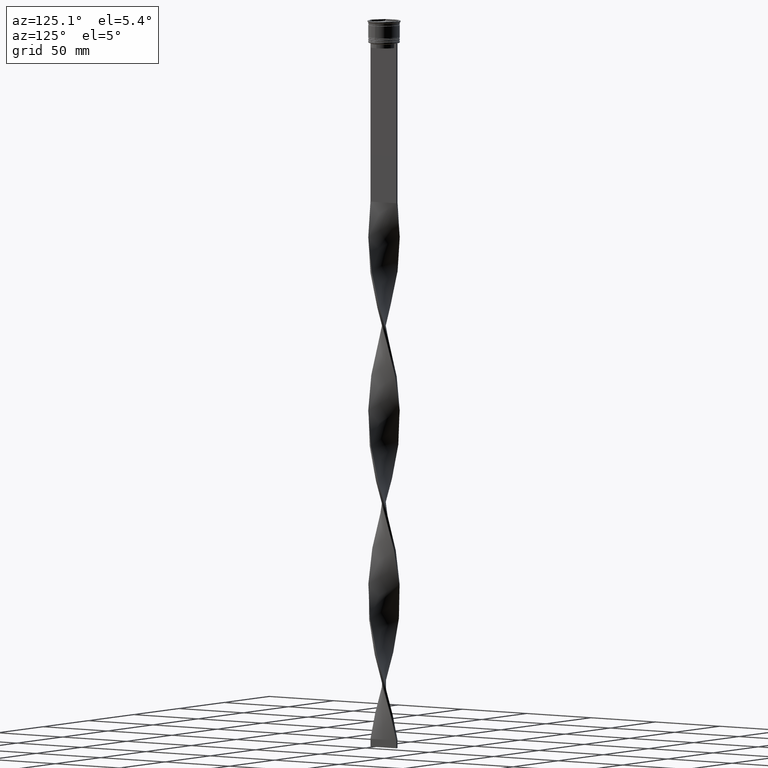
[diagram: clean part render]
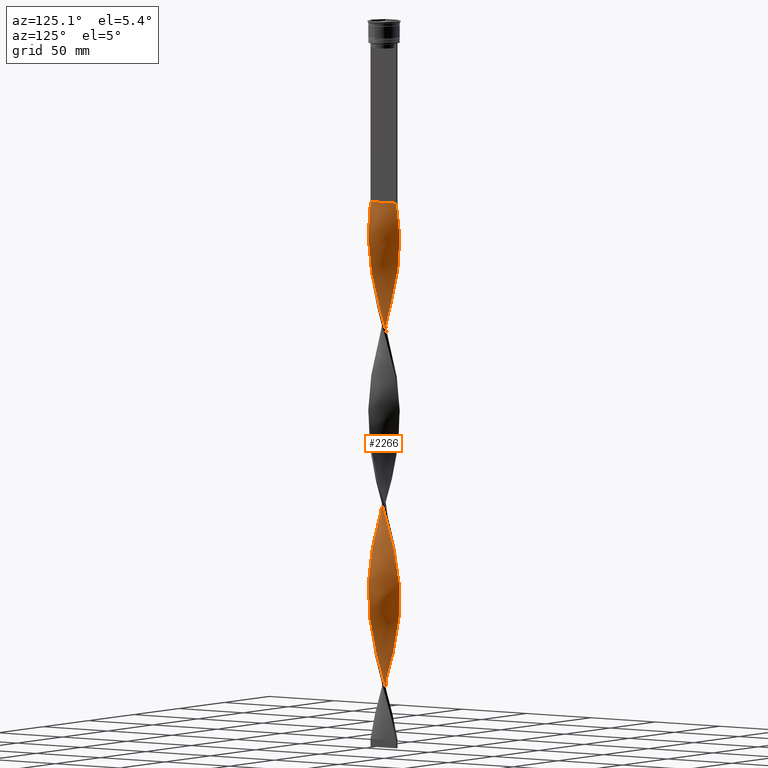
[diagram: same view with one face highlighted and labeled with its STEP entity id]
A machine part, auxiliary view. The second image highlights one B-rep face of the part: STEP entity #2266.
In plain terms, the highlighted face is a freeform B-spline surface patch.
Its self-contained STEP definition (entity closure, byte-faithful):
#6 = CARTESIAN_POINT ( 'NONE',  ( 8.476467727406429731, 5.406144972209740551, -310.8863636363635692 ) ) ;
#9 = CARTESIAN_POINT ( 'NONE',  ( 9.956260036359488197, -1.396350487056333467, -394.0378787878787534 ) ) ;
#26 = CARTESIAN_POINT ( 'NONE',  ( 6.610024179840426228, 7.575255041002662892, -321.2803030303030027 ) ) ;
#28 = CARTESIAN_POINT ( 'NONE',  ( 7.575255041002671774, 6.610024179840428893, -425.2196969696969404 ) ) ;
#44 = CARTESIAN_POINT ( 'NONE',  ( 0.03478588441202989240, 10.05364105866909341, -347.2651515151514445 ) ) ;
#46 = CARTESIAN_POINT ( 'NONE',  ( 0.7500000000000001110, -10.00000000000000533, -116.0000000000000000 ) ) ;
#47 = CARTESIAN_POINT ( 'NONE',  ( 8.048641294001550150, -5.981795158687160274, -375.8484848484848726 ) ) ;
#96 = CARTESIAN_POINT ( 'NONE',  ( 8.784758693793767392, -4.836374126534752627, -271.9090909090909349 ) ) ;
#98 = CARTESIAN_POINT ( 'NONE',  ( -7.066350193083621889, -7.115419520218549287, -313.4848484848484986 ) ) ;
#103 = CARTESIAN_POINT ( 'NONE',  ( -0.7500000000000014433, -9.999999999999998224, -459.0000000000000000 ) ) ;
#113 = CARTESIAN_POINT ( 'NONE',  ( 3.536945298625171041, -9.383630318513906943, -126.3939393939393909 ) ) ;
#117 = CARTESIAN_POINT ( 'NONE',  ( -4.208075784551208010, -9.130662998149977838, -217.3409090909090651 ) ) ;
#119 = CARTESIAN_POINT ( 'NONE',  ( -8.438854389437562276, -5.464672468518299020, -305.6893939393939945 ) ) ;
#129 = CARTESIAN_POINT ( 'NONE',  ( -1.396350487056332579, 9.956260036359481091, -352.4621212121211897 ) ) ;
#145 = CARTESIAN_POINT ( 'NONE',  ( 0.6807823013221493413, -10.00495054751428903, -235.5303030303030312 ) ) ;
#149 = CARTESIAN_POINT ( 'NONE',  ( -9.159564155400591545, 4.144791077655442635, -269.3106060606060623 ) ) ;
#155 = CARTESIAN_POINT ( 'NONE',  ( -3.471926133502974299, 9.407881213296597878, -360.2575757575757507 ) ) ;
#165 = CARTESIAN_POINT ( 'NONE',  ( 7.066350193083616560, -7.115419520218544847, -261.5151515151515582 ) ) ;
#167 = CARTESIAN_POINT ( 'NONE',  ( -5.464672468518299908, 8.438854389437562276, -248.5227272727272521 ) ) ;
#186 = CARTESIAN_POINT ( 'NONE',  ( 7.575255041002665557, -6.610024179840427117, -264.1136363636363171 ) ) ;
#188 = CARTESIAN_POINT ( 'NONE',  ( -6.037348324179364845, 8.007054715220117913, -251.1212121212121247 ) ) ;
#208 = CARTESIAN_POINT ( 'NONE',  ( -9.407881213296604983, 3.471926133502976963, -271.9090909090909349 ) ) ;
#212 = CARTESIAN_POINT ( 'NONE',  ( -4.775468024932588484, 8.818015941403508862, -365.4545454545454959 ) ) ;
#237 = CARTESIAN_POINT ( 'NONE',  ( 4.144791077655440859, 9.159564155400591545, -212.1439393939393767 ) ) ;
#240 = CARTESIAN_POINT ( 'NONE',  ( 5.464672468518299020, -8.438854389437562276, -134.1893939393939661 ) ) ;
#255 = CARTESIAN_POINT ( 'NONE',  ( 0.03478588441202989240, 10.05364105866909341, -118.5984848484848442 ) ) ;
#259 = CARTESIAN_POINT ( 'NONE',  ( -9.383630318513908719, -3.536945298625168377, -297.8939393939394336 ) ) ;
#261 = CARTESIAN_POINT ( 'NONE',  ( 8.818015941403514191, -4.775468024932593814, -152.3787878787879038 ) ) ;
#278 = CARTESIAN_POINT ( 'NONE',  ( -4.775468024932588484, 8.818015941403508862, -136.7878787878787818 ) ) ;
#282 = CARTESIAN_POINT ( 'NONE',  ( -4.208075784551211562, 9.130662998149981391, -243.3257575757575637 ) ) ;
#284 = CARTESIAN_POINT ( 'NONE',  ( -2.865814812699130520, -9.636597638877821836, -451.2045454545454959 ) ) ;
#301 = CARTESIAN_POINT ( 'NONE',  ( -9.407881213296597878, -3.471926133502973411, -188.7575757575757507 ) ) ;
#304 = CARTESIAN_POINT ( 'NONE',  ( 8.818015941403514191, -4.775468024932593814, -381.0454545454545610 ) ) ;
#305 = CARTESIAN_POINT ( 'NONE',  ( 8.438854389437562276, 5.464672468518299908, -191.3560606060605949 ) ) ;
#307 = CARTESIAN_POINT ( 'NONE',  ( -7.575255041002665557, 6.610024179840426228, -378.4469696969697452 ) ) ;
#323 = CARTESIAN_POINT ( 'NONE',  ( 7.115419520218541294, 7.066350193083618336, -318.6818181818181870 ) ) ;
#326 = CARTESIAN_POINT ( 'NONE',  ( 5.464672468518299020, -8.438854389437562276, -362.8560606060606233 ) ) ;
#328 = CARTESIAN_POINT ( 'NONE',  ( 9.383630318513906943, 3.536945298625171041, -183.5606060606060908 ) ) ;
#343 = CARTESIAN_POINT ( 'NONE',  ( -9.159564155400586216, -4.144791077655436418, -191.3560606060605949 ) ) ;
#346 = CARTESIAN_POINT ( 'NONE',  ( 8.476467727406435060, -5.406144972209745880, -378.4469696969697452 ) ) ;
#347 = CARTESIAN_POINT ( 'NONE',  ( 8.438854389437562276, 5.464672468518299908, -420.0227272727271952 ) ) ;
#366 = CARTESIAN_POINT ( 'NONE',  ( 7.575255041002664669, -6.610024179840426228, -264.1136363636363171 ) ) ;
#367 = CARTESIAN_POINT ( 'NONE',  ( 9.383630318513906943, 3.536945298625171041, -412.2272727272727479 ) ) ;
#368 = CARTESIAN_POINT ( 'NONE',  ( -6.557445345164575556, -7.620814860596665241, -316.0833333333332575 ) ) ;
#374 = CARTESIAN_POINT ( 'NONE',  ( -4.775468024932588484, 8.818015941403508862, -136.7878787878787818 ) ) ;
#381 = CARTESIAN_POINT ( 'NONE',  ( -2.865814812699130520, -9.636597638877821836, -222.5378787878787534 ) ) ;
#383 = CARTESIAN_POINT ( 'NONE',  ( 1.396350487056334355, 9.956260036359488197, -451.2045454545454959 ) ) ;
#384 = CARTESIAN_POINT ( 'NONE',  ( 8.476467727406435060, -5.406144972209745880, -378.4469696969697452 ) ) ;
#391 = CARTESIAN_POINT ( 'NONE',  ( 0.7500000000000001110, 9.999999999999998224, -116.0000000000000000 ) ) ;
#421 = CARTESIAN_POINT ( 'NONE',  ( -8.007054715220110808, 6.037348324179362180, -381.0454545454545610 ) ) ;
#432 = CARTESIAN_POINT ( 'NONE',  ( -9.383630318513899837, 3.536945298625170153, -162.7727272727272805 ) ) ;
#434 = ORIENTED_EDGE ( 'NONE', *, *, #994, .T. ) ;
#435 = CARTESIAN_POINT ( 'NONE',  ( -9.636597638877828942, -2.865814812699133629, -295.2954545454545041 ) ) ;
#442 = CARTESIAN_POINT ( 'NONE',  ( -10.05364105866909341, 0.03478588441203087078, -404.4318181818181301 ) ) ;
#452 = CARTESIAN_POINT ( 'NONE',  ( -4.836374126534751738, -8.784758693793767392, -214.7424242424242209 ) ) ;
#454 = CARTESIAN_POINT ( 'NONE',  ( -7.620814860596667906, 6.557445345164575556, -258.9166666666666288 ) ) ;
#467 = CARTESIAN_POINT ( 'NONE',  ( 7.620814860596667906, -6.557445345164574668, -144.5833333333333428 ) ) ;
#470 = CARTESIAN_POINT ( 'NONE',  ( 4.836374126534752627, 8.784758693793767392, -329.0757575757575637 ) ) ;
#472 = CARTESIAN_POINT ( 'NONE',  ( -2.865814812699129632, 9.636597638877828942, -238.1287878787878469 ) ) ;
#480 = CARTESIAN_POINT ( 'NONE',  ( -7.115419520218544847, -7.066350193083616560, -433.0151515151515014 ) ) ;
#495 = CARTESIAN_POINT ( 'NONE',  ( -8.048641294001546598, -5.981795158687154945, -199.1515151515151558 ) ) ;
#498 = CARTESIAN_POINT ( 'NONE',  ( -9.791478290104370430, -2.165514464143549311, -292.6969696969697452 ) ) ;
#513 = CARTESIAN_POINT ( 'NONE',  ( 9.791478290104359772, -2.165514464143551532, -282.3030303030303116 ) ) ;
#517 = CARTESIAN_POINT ( 'NONE',  ( -3.471926133502977851, -9.407881213296603207, -329.0757575757575637 ) ) ;
#534 = CARTESIAN_POINT ( 'NONE',  ( 2.097705838203425266, 9.806229153776049756, -219.9393939393939377 ) ) ;
#538 = CARTESIAN_POINT ( 'NONE',  ( 3.536945298625171041, -9.383630318513906943, -126.3939393939393909 ) ) ;
#552 = CARTESIAN_POINT ( 'NONE',  ( -0.7500000000000014433, -9.999999999999998224, -459.0000000000000000 ) ) ;
#558 = CARTESIAN_POINT ( 'NONE',  ( 9.383630318513906943, 3.536945298625171041, -183.5606060606060908 ) ) ;
#560 = CARTESIAN_POINT ( 'NONE',  ( -3.536945298625169265, -9.383630318513899837, -448.6060606060606233 ) ) ;
#579 = CARTESIAN_POINT ( 'NONE',  ( -5.406144972209740551, 8.476467727406427954, -139.3863636363636260 ) ) ;
#585 = CARTESIAN_POINT ( 'NONE',  ( -2.165514464143549311, 9.791478290104370430, -235.5303030303030312 ) ) ;
#588 = CARTESIAN_POINT ( 'NONE',  ( -8.784758693793767392, 4.836374126534752627, -386.2424242424242493 ) ) ;
#605 = CARTESIAN_POINT ( 'NONE',  ( -9.656198271192609539, 2.799061189350520618, -274.5075757575757507 ) ) ;
#609 = CARTESIAN_POINT ( 'NONE',  ( -5.464672468518298132, -8.438854389437555170, -440.8106060606060055 ) ) ;
#624 = CARTESIAN_POINT ( 'NONE',  ( -9.383630318513899837, 3.536945298625170153, -162.7727272727272805 ) ) ;
#629 = CARTESIAN_POINT ( 'NONE',  ( 9.159564155400593322, -4.144791077655439082, -154.9772727272727195 ) ) ;
#631 = CARTESIAN_POINT ( 'NONE',  ( -2.799061189350513956, 9.656198271192604210, -357.6590909090909918 ) ) ;
#651 = CARTESIAN_POINT ( 'NONE',  ( 9.130662998149976062, -4.208075784551211562, -274.5075757575757507 ) ) ;
#655 = CARTESIAN_POINT ( 'NONE',  ( -0.6807823013221542263, -10.00495054751429613, -339.4696969696969973 ) ) ;
#657 = CARTESIAN_POINT ( 'NONE',  ( 10.05364105866910052, 0.03478588441202912912, -170.5681818181818414 ) ) ;
#673 = CARTESIAN_POINT ( 'NONE',  ( -0.03478588441203151610, -10.05364105866909341, -232.9318181818181870 ) ) ;
#676 = CARTESIAN_POINT ( 'NONE',  ( 9.791478290104370430, 2.165514464143550200, -407.0303030303030027 ) ) ;
#689 = CARTESIAN_POINT ( 'NONE',  ( 9.999999999999998224, -0.7500000000000021094, -287.5000000000000568 ) ) ;
#690 = CARTESIAN_POINT ( 'NONE',  ( 9.946358941330910142, 1.465214115587969879, -404.4318181818180733 ) ) ;
#691 = CARTESIAN_POINT ( 'NONE',  ( 6.610024179840428005, -7.575255041002671774, -368.0530303030302548 ) ) ;
#712 = CARTESIAN_POINT ( 'NONE',  ( -1.465214115587971211, -9.946358941330901260, -227.7348484848484702 ) ) ;
#714 = CARTESIAN_POINT ( 'NONE',  ( 9.407881213296603207, -3.471926133502977851, -386.2424242424242493 ) ) ;
#715 = CARTESIAN_POINT ( 'NONE',  ( -4.775468024932591149, -8.818015941403515967, -323.8787878787878753 ) ) ;
#717 = CARTESIAN_POINT ( 'NONE',  ( 0.7500000000000001110, -10.00000000000000533, -116.0000000000000000 ) ) ;
#729 = CARTESIAN_POINT ( 'NONE',  ( -8.048641294001546598, -5.981795158687154945, -199.1515151515151558 ) ) ;
#733 = CARTESIAN_POINT ( 'NONE',  ( -3.471926133502977851, -9.407881213296603207, -329.0757575757575637 ) ) ;
#747 = CARTESIAN_POINT ( 'NONE',  ( -8.438854389437556947, 5.464672468518296355, -383.6439393939393767 ) ) ;
#754 = CARTESIAN_POINT ( 'NONE',  ( 0.7500000000000001110, -10.00000000000000533, -116.0000000000000000 ) ) ;
#766 = CARTESIAN_POINT ( 'NONE',  ( -0.6807823013221514508, 10.00495054751428903, -349.8636363636363740 ) ) ;
#776 = CARTESIAN_POINT ( 'NONE',  ( -9.956260036359481091, -1.396350487056332801, -180.9621212121212182 ) ) ;
#778 = CARTESIAN_POINT ( 'NONE',  ( 7.575255041002672662, 6.610024179840429781, -196.5530303030303116 ) ) ;
#788 = CARTESIAN_POINT ( 'NONE',  ( -8.818015941403507085, -4.775468024932588484, -422.6212121212121247 ) ) ;
#794 = CARTESIAN_POINT ( 'NONE',  ( 6.610024179840428005, -7.575255041002671774, -139.3863636363636260 ) ) ;
#798 = CARTESIAN_POINT ( 'NONE',  ( -8.818015941403507085, -4.775468024932588484, -193.9545454545454675 ) ) ;
#800 = CARTESIAN_POINT ( 'NONE',  ( 2.799061189350515289, 9.656198271192613092, -217.3409090909090651 ) ) ;
#806 = CARTESIAN_POINT ( 'NONE',  ( -2.097705838203423490, 9.806229153776044427, -355.0606060606060623 ) ) ;
#811 = CARTESIAN_POINT ( 'NONE',  ( -0.7500000000000014433, -9.999999999999998224, -459.0000000000000000 ) ) ;
#817 = CARTESIAN_POINT ( 'NONE',  ( 1.396350487056330358, -9.956260036359481091, -238.1287878787878469 ) ) ;
#819 = CARTESIAN_POINT ( 'NONE',  ( 0.7500000000000001110, -10.00000000000000533, -344.6666666666666856 ) ) ;
#828 = CARTESIAN_POINT ( 'NONE',  ( -3.536945298625169265, -9.383630318513899837, -448.6060606060606233 ) ) ;
#845 = CARTESIAN_POINT ( 'NONE',  ( 9.636597638877821836, -2.865814812699135850, -279.7045454545453822 ) ) ;
#850 = CARTESIAN_POINT ( 'NONE',  ( 4.836374126534755291, -8.784758693793774498, -360.2575757575757507 ) ) ;
#867 = CARTESIAN_POINT ( 'NONE',  ( -4.836374126534756179, 8.784758693793772721, -245.9242424242424363 ) ) ;
#870 = CARTESIAN_POINT ( 'NONE',  ( 9.999999999999998224, -0.7500000000000019984, -287.5000000000000568 ) ) ;
#873 = CARTESIAN_POINT ( 'NONE',  ( -9.956260036359488197, 1.396350487056339240, -279.7045454545453822 ) ) ;
#886 = CARTESIAN_POINT ( 'NONE',  ( 2.799061189350515289, 9.656198271192613092, -217.3409090909090651 ) ) ;
#891 = CARTESIAN_POINT ( 'NONE',  ( -9.656198271192604210, -2.799061189350513512, -414.8257575757575637 ) ) ;
#916 = CARTESIAN_POINT ( 'NONE',  ( -9.636597638877828942, -2.865814812699133629, -295.2954545454545041 ) ) ;
#918 = CARTESIAN_POINT ( 'NONE',  ( -4.836374126534751738, -8.784758693793767392, -443.4090909090909349 ) ) ;
#938 = CARTESIAN_POINT ( 'NONE',  ( -8.784758693793767392, 4.836374126534752627, -157.5757575757575921 ) ) ;
#941 = CARTESIAN_POINT ( 'NONE',  ( -8.438854389437562276, -5.464672468518299020, -305.6893939393939945 ) ) ;
#944 = CARTESIAN_POINT ( 'NONE',  ( 0.03478588441202978832, 10.05364105866909341, -347.2651515151514445 ) ) ;
#960 = CARTESIAN_POINT ( 'NONE',  ( -10.05364105866909341, 0.03478588441203087078, -175.7651515151515014 ) ) ;
#963 = CARTESIAN_POINT ( 'NONE',  ( 7.575255041002671774, 6.610024179840428893, -196.5530303030303116 ) ) ;
#965 = CARTESIAN_POINT ( 'NONE',  ( 0.7500000000000001110, -10.00000000000000533, -116.0000000000000000 ) ) ;
#981 = CARTESIAN_POINT ( 'NONE',  ( -7.620814860596662577, -6.557445345164568451, -201.7499999999999716 ) ) ;
#989 = CARTESIAN_POINT ( 'NONE',  ( -0.03478588441202849074, 10.05364105866910052, -456.4015151515151274 ) ) ;
#991 = CARTESIAN_POINT ( 'NONE',  ( -0.7500000000000013323, -9.999999999999998224, -459.0000000000000000 ) ) ;
#994 = EDGE_CURVE ( 'NONE', #4324, #1005, #3425, .T. ) ;
#1005 = VERTEX_POINT ( 'NONE', #2415 ) ;
#1010 = CARTESIAN_POINT ( 'NONE',  ( 8.048641294001544821, 5.981795158687156722, -313.4848484848484986 ) ) ;
#1014 = CARTESIAN_POINT ( 'NONE',  ( 0.03478588441203162712, -10.05364105866910052, -342.0681818181818130 ) ) ;
#1016 = CARTESIAN_POINT ( 'NONE',  ( 9.636597638877828942, 2.865814812699132741, -180.9621212121212182 ) ) ;
#1035 = CARTESIAN_POINT ( 'NONE',  ( 6.557445345164568451, -7.620814860596663465, -258.9166666666666288 ) ) ;
#1037 = CARTESIAN_POINT ( 'NONE',  ( 6.557445345164574668, 7.620814860596667906, -430.4166666666666856 ) ) ;
#1038 = CARTESIAN_POINT ( 'NONE',  ( 7.620814860596667906, -6.557445345164574668, -373.2499999999999432 ) ) ;
#1044 = CARTESIAN_POINT ( 'NONE',  ( -4.144791077655435529, 9.159564155400587993, -134.1893939393939661 ) ) ;
#1053 = CARTESIAN_POINT ( 'NONE',  ( 9.791478290104359772, -2.165514464143551976, -282.3030303030303116 ) ) ;
#1056 = CARTESIAN_POINT ( 'NONE',  ( 5.981795158687161162, 8.048641294001550150, -433.0151515151515014 ) ) ;
#1063 = CARTESIAN_POINT ( 'NONE',  ( -9.636597638877821836, 2.865814812699130076, -165.3712121212120962 ) ) ;
#1077 = CARTESIAN_POINT ( 'NONE',  ( -8.476467727406427954, -5.406144972209742328, -196.5530303030303116 ) ) ;
#1081 = CARTESIAN_POINT ( 'NONE',  ( 6.610024179840428893, -7.575255041002672662, -368.0530303030302548 ) ) ;
#1082 = CARTESIAN_POINT ( 'NONE',  ( 8.784758693793774498, 4.836374126534754403, -417.4242424242424363 ) ) ;
#1088 = CARTESIAN_POINT ( 'NONE',  ( -8.007054715220110808, 6.037348324179362180, -152.3787878787879038 ) ) ;
#1098 = CARTESIAN_POINT ( 'NONE',  ( -9.159564155400586216, -4.144791077655436418, -420.0227272727271952 ) ) ;
#1125 = CARTESIAN_POINT ( 'NONE',  ( 4.208075784551210674, -9.130662998149981391, -128.9924242424242209 ) ) ;
#1128 = CARTESIAN_POINT ( 'NONE',  ( 5.981795158687154945, -8.048641294001546598, -256.3181818181818130 ) ) ;
#1133 = CARTESIAN_POINT ( 'NONE',  ( -8.476467727406433283, 5.406144972209748545, -264.1136363636363171 ) ) ;
#1142 = CARTESIAN_POINT ( 'NONE',  ( -7.575255041002665557, 6.610024179840425340, -378.4469696969697452 ) ) ;
#1145 = ORIENTED_EDGE ( 'NONE', *, *, #1322, .F. ) ;
#1153 = CARTESIAN_POINT ( 'NONE',  ( 7.115419520218541294, 7.066350193083619224, -318.6818181818181870 ) ) ;
#1155 = CARTESIAN_POINT ( 'NONE',  ( -4.144791077655442635, -9.159564155400591545, -326.4772727272727479 ) ) ;
#1171 = CARTESIAN_POINT ( 'NONE',  ( 9.407881213296599654, 3.471926133502971190, -303.0909090909091219 ) ) ;
#1173 = CARTESIAN_POINT ( 'NONE',  ( 0.6807823013221528941, 10.00495054751429613, -225.1363636363636260 ) ) ;
#1180 = CARTESIAN_POINT ( 'NONE',  ( -6.610024179840426228, -7.575255041002664669, -435.6136363636363171 ) ) ;
#1191 = CARTESIAN_POINT ( 'NONE',  ( -0.7500000000000013323, -9.999999999999998224, -230.3333333333333428 ) ) ;
#1193 = CARTESIAN_POINT ( 'NONE',  ( -10.00495054751429613, 0.6807823013221533381, -282.3030303030303116 ) ) ;
#1206 = CARTESIAN_POINT ( 'NONE',  ( -9.791478290104359772, 2.165514464143550644, -167.9696969696969973 ) ) ;
#1211 = CARTESIAN_POINT ( 'NONE',  ( -0.7499999999999988898, 10.00000000000000533, -230.3333333333333428 ) ) ;
#1215 = CARTESIAN_POINT ( 'NONE',  ( -2.865814812699130520, -9.636597638877821836, -222.5378787878787250 ) ) ;
#1218 = CARTESIAN_POINT ( 'NONE',  ( -9.806229153776049756, 2.097705838203426154, -277.1060606060606233 ) ) ;
#1236 = CARTESIAN_POINT ( 'NONE',  ( -10.00000000000000533, -0.7499999999999983347, -287.5000000000000568 ) ) ;
#1240 = CARTESIAN_POINT ( 'NONE',  ( 0.7500000000000001110, 9.999999999999998224, -344.6666666666666856 ) ) ;
#1259 = CARTESIAN_POINT ( 'NONE',  ( -8.048641294001550150, 5.981795158687161162, -261.5151515151515582 ) ) ;
#1261 = CARTESIAN_POINT ( 'NONE',  ( 6.037348324179364845, -8.007054715220117913, -136.7878787878787818 ) ) ;
#1281 = CARTESIAN_POINT ( 'NONE',  ( -8.438854389437556947, 5.464672468518296355, -154.9772727272727195 ) ) ;
#1283 = CARTESIAN_POINT ( 'NONE',  ( -2.865814812699129632, 9.636597638877828942, -238.1287878787878469 ) ) ;
#1286 = CARTESIAN_POINT ( 'NONE',  ( -1.396350487056332357, 9.956260036359481091, -352.4621212121211329 ) ) ;
#1306 = CARTESIAN_POINT ( 'NONE',  ( -9.999999999999998224, 0.7500000000000008882, -173.1666666666666856 ) ) ;
#1310 = CARTESIAN_POINT ( 'NONE',  ( -7.115419520218547511, 7.066350193083623665, -256.3181818181818130 ) ) ;
#1312 = CARTESIAN_POINT ( 'NONE',  ( 9.806229153776049756, -2.097705838203426598, -162.7727272727272805 ) ) ;
#1322 = EDGE_CURVE ( 'NONE', #2561, #1005, #2079, .T. ) ;
#1326 = CARTESIAN_POINT ( 'NONE',  ( 8.818015941403510638, 4.775468024932583155, -308.2878787878788103 ) ) ;
#1329 = CARTESIAN_POINT ( 'NONE',  ( 10.00495054751429613, -0.6807823013221522279, -396.6363636363636260 ) ) ;
#1330 = CARTESIAN_POINT ( 'NONE',  ( 2.799061189350515289, 9.656198271192613092, -446.0075757575756938 ) ) ;
#1332 = CARTESIAN_POINT ( 'NONE',  ( -9.999999999999998224, 0.7500000000000007772, -401.8333333333333144 ) ) ;
#1344 = CARTESIAN_POINT ( 'NONE',  ( 9.956260036359481091, 1.396350487056334133, -295.2954545454545041 ) ) ;
#1353 = CARTESIAN_POINT ( 'NONE',  ( 8.784758693793774498, 4.836374126534754403, -188.7575757575757507 ) ) ;
#1367 = CARTESIAN_POINT ( 'NONE',  ( 3.536945298625170153, 9.383630318513899837, -334.2727272727272521 ) ) ;
#1368 = CARTESIAN_POINT ( 'NONE',  ( 7.620814860596668794, -6.557445345164574668, -373.2499999999999432 ) ) ;
#1369 = CARTESIAN_POINT ( 'NONE',  ( 10.00000000000000533, 0.7499999999999994449, -401.8333333333333144 ) ) ;
#1383 = CARTESIAN_POINT ( 'NONE',  ( -4.208075784551207121, -9.130662998149977838, -217.3409090909090651 ) ) ;
#1384 = CARTESIAN_POINT ( 'NONE',  ( 0.6807823013221528941, 10.00495054751429613, -453.8030303030303116 ) ) ;
#1385 = CARTESIAN_POINT ( 'NONE',  ( 9.946358941330908365, 1.465214115587969879, -404.4318181818181301 ) ) ;
#1390 = CARTESIAN_POINT ( 'NONE',  ( 0.03478588441202978832, 10.05364105866909341, -118.5984848484848442 ) ) ;
#1403 = CARTESIAN_POINT ( 'NONE',  ( -3.536945298625169265, -9.383630318513899837, -219.9393939393939377 ) ) ;
#1405 = CARTESIAN_POINT ( 'NONE',  ( 9.791478290104370430, 2.165514464143550200, -407.0303030303030027 ) ) ;
#1406 = CARTESIAN_POINT ( 'NONE',  ( 4.208075784551210674, -9.130662998149981391, -357.6590909090909349 ) ) ;
#1427 = CARTESIAN_POINT ( 'NONE',  ( -9.383630318513899837, 3.536945298625170153, -391.4393939393939945 ) ) ;
#1439 = CARTESIAN_POINT ( 'NONE',  ( -2.097705838203423490, 9.806229153776044427, -126.3939393939393909 ) ) ;
#1454 = CARTESIAN_POINT ( 'NONE',  ( 9.130662998149976062, -4.208075784551212450, -274.5075757575757507 ) ) ;
#1456 = CARTESIAN_POINT ( 'NONE',  ( 5.981795158687161162, 8.048641294001550150, -204.3484848484848726 ) ) ;
#1462 = CARTESIAN_POINT ( 'NONE',  ( -9.999999999999998224, 0.7500000000000008882, -401.8333333333333144 ) ) ;
#1474 = CARTESIAN_POINT ( 'NONE',  ( 9.956260036359481091, 1.396350487056333689, -295.2954545454545041 ) ) ;
#1478 = CARTESIAN_POINT ( 'NONE',  ( -5.981795158687158498, -8.048641294001550150, -318.6818181818181870 ) ) ;
#1498 = CARTESIAN_POINT ( 'NONE',  ( 9.383630318513899837, -3.536945298625169709, -277.1060606060606233 ) ) ;
#1501 = CARTESIAN_POINT ( 'NONE',  ( 3.471926133502976075, 9.407881213296604983, -214.7424242424242209 ) ) ;
#1510 = CARTESIAN_POINT ( 'NONE',  ( -9.791478290104359772, 2.165514464143550644, -396.6363636363636260 ) ) ;
#1520 = CARTESIAN_POINT ( 'NONE',  ( 9.159564155400587993, 4.144791077655435529, -305.6893939393939945 ) ) ;
#1521 = CARTESIAN_POINT ( 'NONE',  ( 1.465214115587970545, -9.946358941330910142, -347.2651515151514445 ) ) ;
#1532 = ORIENTED_EDGE ( 'NONE', *, *, #2880, .F. ) ;
#1540 = CARTESIAN_POINT ( 'NONE',  ( 10.05364105866909341, -0.03478588441202762338, -290.0984848484849294 ) ) ;
#1544 = CARTESIAN_POINT ( 'NONE',  ( 4.775468024932594702, 8.818015941403514191, -209.5454545454545610 ) ) ;
#1567 = CARTESIAN_POINT ( 'NONE',  ( -9.956260036359488197, 1.396350487056339018, -279.7045454545454390 ) ) ;
#1571 = CARTESIAN_POINT ( 'NONE',  ( 2.165514464143551976, -9.791478290104366877, -121.1969696969697026 ) ) ;
#1588 = CARTESIAN_POINT ( 'NONE',  ( -8.476467727406433283, 5.406144972209748545, -264.1136363636363171 ) ) ;
#1592 = CARTESIAN_POINT ( 'NONE',  ( -9.806229153776044427, -2.097705838203423490, -412.2272727272727479 ) ) ;
#1597 =( BOUNDED_CURVE ( )  B_SPLINE_CURVE ( 2, ( #1888, #255, #2591, #3253, #2919, #4303, #2943, #4003, #278, #579, #4028, #4328, #2613, #1607, #3976, #1281, #938, #2304, #624, #1982, #1206, #4381, #1306, #960, #2325, #2566, #2725, #2032, #301, #343, #2390, #1077, #729, #981, #3752, #1699, #2761, #3732, #3438, #1383, #1403, #381, #4140, #712, #2431, #673, #2680, #3415, #3395, #1738, #2348, #2092, #2049, #3375, #3036, #1035, #3795, #366, #1660, #3019, #3082, #651, #2742, #2008, #1053, #3061, #689, #2409, #4405, #1344, #4076, #1683, #3777, #2703, #1326, #6, #1010, #3710, #323, #26, #1721, #4421, #4051, #2371, #1367, #4116, #4096, #2071, #3101, #44, #766, #129, #806, #2821, #155, #4162, #3497, #3517, #3833, #2135, #2109, #1142, #421, #747, #2800, #3535, #1427, #4204, #1510, #2493, #1462, #442, #3456, #1800, #3857, #4250, #3893, #1098, #788, #3162, #2863, #2175, #480, #1180, #2450, #1841, #2532, #3873, #828, #2468, #2782, #2156, #103 ),
 .UNSPECIFIED., .F., .T. ) 
 B_SPLINE_CURVE_WITH_KNOTS ( ( 3, 2, 2, 2, 2, 2, 2, 2, 2, 2, 2, 2, 2, 2, 2, 2, 2, 2, 2, 2, 2, 2, 2, 2, 2, 2, 2, 2, 2, 2, 2, 2, 2, 2, 2, 2, 2, 2, 2, 2, 2, 2, 2, 2, 2, 2, 2, 2, 2, 2, 2, 2, 2, 2, 2, 2, 2, 2, 2, 2, 2, 2, 2, 2, 2, 2, 3 ),
 ( 0.000000000000000000, 0.01136363636363636222, 0.02272727272727272443, 0.03409090909090908839, 0.04545454545454544887, 0.05681818181818181629, 0.06818181818181817677, 0.07954545454545454419, 0.09090909090909089774, 0.1022727272727272790, 0.1136363636363636326, 0.1250000000000000000, 0.1363636363636363535, 0.1477272727272727348, 0.1590909090909090884, 0.1704545454545454419, 0.1818181818181817955, 0.1931818181818182045, 0.2045454545454545581, 0.2159090909090909116, 0.2272727272727272652, 0.2386363636363636465, 0.2500000000000000000, 0.2613636363636363535, 0.2727272727272727071, 0.2840909090909091161, 0.2954545454545454697, 0.3068181818181818232, 0.3181818181818181768, 0.3295454545454545303, 0.3409090909090908839, 0.3522727272727272929, 0.3636363636363635909, 0.3750000000000000000, 0.3863636363636364091, 0.3977272727272727071, 0.4090909090909091161, 0.4204545454545454697, 0.4318181818181818232, 0.4431818181818181768, 0.4545454545454545303, 0.4659090909090908839, 0.4772727272727272929, 0.4886363636363635909, 0.5000000000000000000, 0.5113636363636363535, 0.5227272727272727071, 0.5340909090909090606, 0.5454545454545454142, 0.5568181818181817677, 0.5681818181818182323, 0.5795454545454545858, 0.5909090909090909394, 0.6022727272727272929, 0.6136363636363636465, 0.6250000000000000000, 0.6363636363636363535, 0.6477272727272727071, 0.6590909090909090606, 0.6704545454545454142, 0.6818181818181817677, 0.6931818181818182323, 0.7045454545454545858, 0.7159090909090909394, 0.7272727272727271819, 0.7386363636363636465, 0.7500000000000000000 ),
 .UNSPECIFIED. ) 
 CURVE ( )  GEOMETRIC_REPRESENTATION_ITEM ( )  RATIONAL_B_SPLINE_CURVE ( ( 1.000000000000000000, 0.9974521146102535152, 1.000000000000000000, 0.9974521146102535152, 1.000000000000000000, 0.9974521146102535152, 1.000000000000000000, 0.9974521146102535152, 1.000000000000000000, 0.9974521146102535152, 1.000000000000000000, 0.9974521146102535152, 1.000000000000000000, 0.9974521146102535152, 1.000000000000000000, 0.9974521146102535152, 1.000000000000000000, 0.9974521146102535152, 1.000000000000000000, 0.9974521146102535152, 1.000000000000000000, 0.9974521146102535152, 1.000000000000000000, 0.9974521146102535152, 1.000000000000000000, 0.9974521146102535152, 1.000000000000000000, 0.9974521146102535152, 1.000000000000000000, 0.9974521146102535152, 1.000000000000000000, 0.9974521146102535152, 1.000000000000000000, 0.9974521146102535152, 1.000000000000000000, 0.9974521146102535152, 1.000000000000000000, 0.9974521146102535152, 1.000000000000000000, 0.9974521146102535152, 1.000000000000000000, 0.9974521146102535152, 1.000000000000000000, 0.9974521146102535152, 1.000000000000000000, 0.9974521146102535152, 1.000000000000000000, 0.9974521146102535152, 1.000000000000000000, 0.9974521146102535152, 1.000000000000000000, 0.9974521146102535152, 1.000000000000000000, 0.9974521146102535152, 1.000000000000000000, 0.9974521146102535152, 1.000000000000000000, 0.9974521146102535152, 1.000000000000000000, 0.9974521146102535152, 1.000000000000000000, 0.9974521146102535152, 1.000000000000000000, 0.9974521146102535152, 1.000000000000000000, 0.9974521146102535152, 1.000000000000000000, 0.9974521146102535152, 1.000000000000000000, 0.9974521146102535152, 1.000000000000000000, 0.9974521146102535152, 1.000000000000000000, 0.9974521146102535152, 1.000000000000000000, 0.9974521146102535152, 1.000000000000000000, 0.9974521146102535152, 1.000000000000000000, 0.9974521146102535152, 1.000000000000000000, 0.9974521146102535152, 1.000000000000000000, 0.9974521146102535152, 1.000000000000000000, 0.9974521146102535152, 1.000000000000000000, 0.9974521146102535152, 1.000000000000000000, 0.9974521146102535152, 1.000000000000000000, 0.9974521146102535152, 1.000000000000000000, 0.9974521146102535152, 1.000000000000000000, 0.9974521146102535152, 1.000000000000000000, 0.9974521146102535152, 1.000000000000000000, 0.9974521146102535152, 1.000000000000000000, 0.9974521146102535152, 1.000000000000000000, 0.9974521146102535152, 1.000000000000000000, 0.9974521146102535152, 1.000000000000000000, 0.9974521146102535152, 1.000000000000000000, 0.9974521146102535152, 1.000000000000000000, 0.9974521146102535152, 1.000000000000000000, 0.9974521146102535152, 1.000000000000000000, 0.9974521146102535152, 1.000000000000000000, 0.9974521146102535152, 1.000000000000000000, 0.9974521146102535152, 1.000000000000000000, 0.9974521146102535152, 1.000000000000000000, 0.9974521146102535152, 1.000000000000000000, 0.9974521146102535152, 1.000000000000000000, 0.9974521146102535152, 1.000000000000000000, 0.9974521146102535152, 1.000000000000000000, 0.9974521146102535152, 1.000000000000000000 ) ) 
 REPRESENTATION_ITEM ( '' )  );
#1607 = CARTESIAN_POINT ( 'NONE',  ( -7.575255041002665557, 6.610024179840425340, -149.7803030303030312 ) ) ;
#1612 = CARTESIAN_POINT ( 'NONE',  ( -9.130662998149981391, -4.208075784551210674, -300.4924242424242493 ) ) ;
#1614 = CARTESIAN_POINT ( 'NONE',  ( 7.115419520218548399, -7.066350193083622777, -141.9848484848484986 ) ) ;
#1639 = CARTESIAN_POINT ( 'NONE',  ( 6.557445345164574668, 7.620814860596667017, -201.7499999999999716 ) ) ;
#1641 = CARTESIAN_POINT ( 'NONE',  ( -8.476467727406427954, -5.406144972209742328, -425.2196969696969404 ) ) ;
#1660 = CARTESIAN_POINT ( 'NONE',  ( 8.007054715220114360, -6.037348324179360404, -266.7121212121212466 ) ) ;
#1663 = CARTESIAN_POINT ( 'NONE',  ( 9.956260036359488197, -1.396350487056333245, -394.0378787878788103 ) ) ;
#1664 = CARTESIAN_POINT ( 'NONE',  ( 10.05364105866910052, 0.03478588441202913606, -399.2348484848484418 ) ) ;
#1666 = CARTESIAN_POINT ( 'NONE',  ( -0.6807823013221515618, 10.00495054751428903, -349.8636363636363740 ) ) ;
#1683 = CARTESIAN_POINT ( 'NONE',  ( 9.656198271192604210, 2.799061189350513956, -300.4924242424242493 ) ) ;
#1688 = CARTESIAN_POINT ( 'NONE',  ( 9.946358941330910142, 1.465214115587969879, -175.7651515151515014 ) ) ;
#1699 = CARTESIAN_POINT ( 'NONE',  ( -6.610024179840426228, -7.575255041002664669, -206.9469696969697168 ) ) ;
#1721 = CARTESIAN_POINT ( 'NONE',  ( 6.037348324179360404, 8.007054715220112584, -323.8787878787878753 ) ) ;
#1724 = CARTESIAN_POINT ( 'NONE',  ( -5.406144972209749433, -8.476467727406431507, -321.2803030303030027 ) ) ;
#1731 = CARTESIAN_POINT ( 'NONE',  ( -8.438854389437556947, 5.464672468518296355, -154.9772727272727195 ) ) ;
#1738 = CARTESIAN_POINT ( 'NONE',  ( 2.799061189350514844, -9.656198271192604210, -243.3257575757575637 ) ) ;
#1740 = CARTESIAN_POINT ( 'NONE',  ( 2.097705838203425266, 9.806229153776049756, -448.6060606060606233 ) ) ;
#1741 = CARTESIAN_POINT ( 'NONE',  ( 9.130662998149981391, 4.208075784551210674, -414.8257575757575637 ) ) ;
#1747 = CARTESIAN_POINT ( 'NONE',  ( -6.557445345164569339, 7.620814860596663465, -144.5833333333333428 ) ) ;
#1791 = CARTESIAN_POINT ( 'NONE',  ( 5.406144972209740551, -8.476467727406427954, -253.7196969696969973 ) ) ;
#1794 = CARTESIAN_POINT ( 'NONE',  ( -9.383630318513908719, -3.536945298625168377, -297.8939393939394336 ) ) ;
#1800 = CARTESIAN_POINT ( 'NONE',  ( -9.956260036359481091, -1.396350487056333023, -409.6287878787878185 ) ) ;
#1809 = CARTESIAN_POINT ( 'NONE',  ( -2.165514464143551088, -9.791478290104359772, -225.1363636363636260 ) ) ;
#1812 = CARTESIAN_POINT ( 'NONE',  ( 0.03478588441203162018, -10.05364105866910052, -342.0681818181818699 ) ) ;
#1826 = CARTESIAN_POINT ( 'NONE',  ( 8.048641294001550150, -5.981795158687160274, -147.1818181818181870 ) ) ;
#1830 = CARTESIAN_POINT ( 'NONE',  ( 2.865814812699136294, 9.636597638877821836, -336.8712121212120110 ) ) ;
#1834 = CARTESIAN_POINT ( 'NONE',  ( -6.610024179840428893, 7.575255041002672662, -253.7196969696969973 ) ) ;
#1841 = CARTESIAN_POINT ( 'NONE',  ( -5.464672468518298132, -8.438854389437555170, -440.8106060606060055 ) ) ;
#1853 = CARTESIAN_POINT ( 'NONE',  ( 2.097705838203419937, -9.806229153776046203, -240.7272727272727479 ) ) ;
#1859 = CARTESIAN_POINT ( 'NONE',  ( -7.575255041002672662, -6.610024179840428893, -310.8863636363635692 ) ) ;
#1874 = CARTESIAN_POINT ( 'NONE',  ( -9.806229153776044427, -2.097705838203423490, -183.5606060606060908 ) ) ;
#1877 = CARTESIAN_POINT ( 'NONE',  ( -10.05364105866910052, -0.03478588441203238346, -284.9015151515151842 ) ) ;
#1888 = CARTESIAN_POINT ( 'NONE',  ( 0.7500000000000002220, 9.999999999999998224, -116.0000000000000000 ) ) ;
#1891 = CARTESIAN_POINT ( 'NONE',  ( 8.476467727406435060, -5.406144972209745880, -149.7803030303030312 ) ) ;
#1894 = CARTESIAN_POINT ( 'NONE',  ( 4.208075784551211562, -9.130662998149983167, -128.9924242424241925 ) ) ;
#1920 = CARTESIAN_POINT ( 'NONE',  ( 9.956260036359488197, -1.396350487056333467, -165.3712121212121247 ) ) ;
#1922 = CARTESIAN_POINT ( 'NONE',  ( -9.383630318513899837, 3.536945298625170153, -391.4393939393939945 ) ) ;
#1942 = CARTESIAN_POINT ( 'NONE',  ( -9.159564155400591545, 4.144791077655441747, -269.3106060606060623 ) ) ;
#1944 = CARTESIAN_POINT ( 'NONE',  ( -6.037348324179363068, -8.007054715220110808, -438.2121212121212466 ) ) ;
#1961 = CARTESIAN_POINT ( 'NONE',  ( -7.575255041002671774, -6.610024179840428005, -310.8863636363635692 ) ) ;
#1963 = CARTESIAN_POINT ( 'NONE',  ( -4.144791077655435529, 9.159564155400587993, -362.8560606060606233 ) ) ;
#1982 = CARTESIAN_POINT ( 'NONE',  ( -9.636597638877821836, 2.865814812699130076, -165.3712121212121247 ) ) ;
#1987 = CARTESIAN_POINT ( 'NONE',  ( 7.066350193083622777, 7.115419520218547511, -199.1515151515151558 ) ) ;
#1989 = CARTESIAN_POINT ( 'NONE',  ( -8.007054715220110808, 6.037348324179362180, -381.0454545454545610 ) ) ;
#2008 = CARTESIAN_POINT ( 'NONE',  ( 9.636597638877821836, -2.865814812699135850, -279.7045454545454390 ) ) ;
#2012 = CARTESIAN_POINT ( 'NONE',  ( 0.6807823013221528941, 10.00495054751429613, -453.8030303030303116 ) ) ;
#2014 = CARTESIAN_POINT ( 'NONE',  ( 10.00000000000000533, 0.7499999999999994449, -173.1666666666666856 ) ) ;
#2032 = CARTESIAN_POINT ( 'NONE',  ( -9.656198271192604210, -2.799061189350513512, -186.1590909090908781 ) ) ;
#2034 = CARTESIAN_POINT ( 'NONE',  ( -0.03478588441202849074, 10.05364105866910052, -456.4015151515151274 ) ) ;
#2049 = CARTESIAN_POINT ( 'NONE',  ( 4.775468024932588484, -8.818015941403508862, -251.1212121212121247 ) ) ;
#2054 = CARTESIAN_POINT ( 'NONE',  ( 10.00000000000000533, 0.7499999999999994449, -401.8333333333333144 ) ) ;
#2055 = CARTESIAN_POINT ( 'NONE',  ( 4.144791077655440859, 9.159564155400591545, -440.8106060606060055 ) ) ;
#2071 = CARTESIAN_POINT ( 'NONE',  ( 1.465214115587968102, 9.946358941330901260, -342.0681818181818130 ) ) ;
#2074 = CARTESIAN_POINT ( 'NONE',  ( 7.066350193083622777, 7.115419520218547511, -427.8181818181818130 ) ) ;
#2075 = CARTESIAN_POINT ( 'NONE',  ( 0.7500000000000001110, -10.00000000000000533, -344.6666666666666856 ) ) ;
#2079 = B_SPLINE_CURVE_WITH_KNOTS ( 'NONE', 3,
 ( #552, #2994, #2658, #3662 ),
 .UNSPECIFIED., .F., .F.,
 ( 4, 4 ),
 ( 0.000000000000000000, 1.000000000000000000 ),
 .UNSPECIFIED. ) ;
#2092 = CARTESIAN_POINT ( 'NONE',  ( 4.144791077655436418, -9.159564155400587993, -248.5227272727272521 ) ) ;
#2095 = CARTESIAN_POINT ( 'NONE',  ( -2.799061189350520618, -9.656198271192609539, -331.6742424242423795 ) ) ;
#2101 = CARTESIAN_POINT ( 'NONE',  ( -1.396350487056332357, 9.956260036359481091, -123.7954545454545325 ) ) ;
#2109 = CARTESIAN_POINT ( 'NONE',  ( -7.066350193083617448, 7.115419520218543958, -375.8484848484848726 ) ) ;
#2121 = CARTESIAN_POINT ( 'NONE',  ( -7.066350193083617448, 7.115419520218543958, -147.1818181818181870 ) ) ;
#2135 = CARTESIAN_POINT ( 'NONE',  ( -6.557445345164569339, 7.620814860596662577, -373.2499999999999432 ) ) ;
#2146 = CARTESIAN_POINT ( 'NONE',  ( 4.775468024932588484, -8.818015941403508862, -251.1212121212121247 ) ) ;
#2149 = CARTESIAN_POINT ( 'NONE',  ( -9.946358941330910142, -1.465214115587972765, -290.0984848484849294 ) ) ;
#2156 = CARTESIAN_POINT ( 'NONE',  ( -1.465214115587971211, -9.946358941330901260, -456.4015151515151274 ) ) ;
#2165 = CARTESIAN_POINT ( 'NONE',  ( -7.620814860596663465, -6.557445345164568451, -201.7500000000000000 ) ) ;
#2168 = CARTESIAN_POINT ( 'NONE',  ( -10.00000000000000533, -0.7499999999999983347, -287.5000000000000568 ) ) ;
#2175 = CARTESIAN_POINT ( 'NONE',  ( -7.620814860596662577, -6.557445345164568451, -430.4166666666666856 ) ) ;
#2189 = CARTESIAN_POINT ( 'NONE',  ( 4.144791077655436418, -9.159564155400587993, -248.5227272727272521 ) ) ;
#2193 = CARTESIAN_POINT ( 'NONE',  ( 2.165514464143551976, -9.791478290104366877, -349.8636363636363740 ) ) ;
#2214 = CARTESIAN_POINT ( 'NONE',  ( -9.407881213296597878, -3.471926133502973411, -188.7575757575757507 ) ) ;
#2219 = CARTESIAN_POINT ( 'NONE',  ( -4.836374126534756179, 8.784758693793772721, -245.9242424242424363 ) ) ;
#2235 = CARTESIAN_POINT ( 'NONE',  ( 5.981795158687161162, 8.048641294001550150, -204.3484848484848726 ) ) ;
#2238 = CARTESIAN_POINT ( 'NONE',  ( -6.037348324179363068, -8.007054715220110808, -209.5454545454545610 ) ) ;
#2258 = CARTESIAN_POINT ( 'NONE',  ( -10.05364105866910052, -0.03478588441203238346, -284.9015151515151842 ) ) ;
#2261 = CARTESIAN_POINT ( 'NONE',  ( -9.407881213296597878, -3.471926133502973411, -417.4242424242424363 ) ) ;
#2266 = ADVANCED_FACE ( 'NONE', ( #3823 ), #2936, .T. ) ;
#2272 = EDGE_CURVE ( 'NONE', #4324, #4020, #3039, .T. ) ;
#2289 = CARTESIAN_POINT ( 'NONE',  ( 10.05364105866910052, 0.03478588441202913606, -170.5681818181818414 ) ) ;
#2291 = CARTESIAN_POINT ( 'NONE',  ( -8.818015941403507085, -4.775468024932588484, -422.6212121212121247 ) ) ;
#2304 = CARTESIAN_POINT ( 'NONE',  ( -9.130662998149976062, 4.208075784551208898, -160.1742424242424363 ) ) ;
#2308 = CARTESIAN_POINT ( 'NONE',  ( -7.620814860596667017, 6.557445345164575556, -258.9166666666666288 ) ) ;
#2310 = CARTESIAN_POINT ( 'NONE',  ( -9.956260036359481091, -1.396350487056332801, -409.6287878787878185 ) ) ;
#2325 = CARTESIAN_POINT ( 'NONE',  ( -10.00495054751428903, -0.6807823013221501185, -178.3636363636364024 ) ) ;
#2329 = CARTESIAN_POINT ( 'NONE',  ( 9.806229153776049756, -2.097705838203426598, -162.7727272727272805 ) ) ;
#2332 = CARTESIAN_POINT ( 'NONE',  ( -5.406144972209740551, 8.476467727406427954, -368.0530303030302548 ) ) ;
#2348 = CARTESIAN_POINT ( 'NONE',  ( 3.471926133502975187, -9.407881213296597878, -245.9242424242424363 ) ) ;
#2353 = CARTESIAN_POINT ( 'NONE',  ( -0.7499999999999988898, 10.00000000000000533, -459.0000000000000000 ) ) ;
#2355 = CARTESIAN_POINT ( 'NONE',  ( -2.097705838203423490, 9.806229153776044427, -355.0606060606060623 ) ) ;
#2371 = CARTESIAN_POINT ( 'NONE',  ( 4.208075784551212450, 9.130662998149976062, -331.6742424242423795 ) ) ;
#2375 = CARTESIAN_POINT ( 'NONE',  ( -1.396350487056339462, -9.956260036359488197, -336.8712121212120678 ) ) ;
#2390 = CARTESIAN_POINT ( 'NONE',  ( -8.818015941403507085, -4.775468024932588484, -193.9545454545454675 ) ) ;
#2391 = CARTESIAN_POINT ( 'NONE',  ( 8.784758693793774498, 4.836374126534754403, -417.4242424242424363 ) ) ;
#2392 = CARTESIAN_POINT ( 'NONE',  ( 9.656198271192611315, -2.799061189350517065, -388.8409090909090651 ) ) ;
#2409 = CARTESIAN_POINT ( 'NONE',  ( 10.05364105866909341, -0.03478588441202772746, -290.0984848484848726 ) ) ;
#2414 = CARTESIAN_POINT ( 'NONE',  ( 10.05364105866910052, 0.03478588441202912912, -399.2348484848484418 ) ) ;
#2415 = CARTESIAN_POINT ( 'NONE',  ( -0.7499999999999988898, 10.00000000000000533, -459.0000000000000000 ) ) ;
#2422 = CARTESIAN_POINT ( 'NONE',  ( -3.471926133502974299, 9.407881213296597878, -131.5909090909090935 ) ) ;
#2431 = CARTESIAN_POINT ( 'NONE',  ( -0.7500000000000014433, -9.999999999999998224, -230.3333333333333428 ) ) ;
#2436 = CARTESIAN_POINT ( 'NONE',  ( 6.557445345164574668, 7.620814860596667017, -430.4166666666666856 ) ) ;
#2450 = CARTESIAN_POINT ( 'NONE',  ( -6.037348324179363068, -8.007054715220110808, -438.2121212121212466 ) ) ;
#2468 = CARTESIAN_POINT ( 'NONE',  ( -2.865814812699130520, -9.636597638877821836, -451.2045454545454959 ) ) ;
#2479 = CARTESIAN_POINT ( 'NONE',  ( 9.806229153776046203, 2.097705838203419937, -297.8939393939394336 ) ) ;
#2484 = CARTESIAN_POINT ( 'NONE',  ( -4.775468024932591149, -8.818015941403515967, -323.8787878787878753 ) ) ;
#2493 = CARTESIAN_POINT ( 'NONE',  ( -9.946358941330901260, 1.465214115587970545, -399.2348484848484418 ) ) ;
#2505 = CARTESIAN_POINT ( 'NONE',  ( 6.037348324179359516, 8.007054715220112584, -323.8787878787878753 ) ) ;
#2506 = CARTESIAN_POINT ( 'NONE',  ( 0.7500000000000002220, 9.999999999999998224, -116.0000000000000000 ) ) ;
#2508 = CARTESIAN_POINT ( 'NONE',  ( -4.208075784551212450, 9.130662998149983167, -243.3257575757575637 ) ) ;
#2524 = CARTESIAN_POINT ( 'NONE',  ( -3.536945298625169265, -9.383630318513899837, -219.9393939393939377 ) ) ;
#2526 = CARTESIAN_POINT ( 'NONE',  ( 4.144791077655441747, 9.159564155400591545, -212.1439393939393767 ) ) ;
#2532 = CARTESIAN_POINT ( 'NONE',  ( -4.836374126534751738, -8.784758693793767392, -443.4090909090909349 ) ) ;
#2548 = CARTESIAN_POINT ( 'NONE',  ( 1.465214115587967880, 9.946358941330903036, -342.0681818181818699 ) ) ;
#2551 = CARTESIAN_POINT ( 'NONE',  ( 3.536945298625171041, -9.383630318513906943, -355.0606060606060623 ) ) ;
#2561 = VERTEX_POINT ( 'NONE', #811 ) ;
#2566 = CARTESIAN_POINT ( 'NONE',  ( -9.956260036359481091, -1.396350487056333023, -180.9621212121212182 ) ) ;
#2570 = CARTESIAN_POINT ( 'NONE',  ( -3.536945298625168377, 9.383630318513908719, -240.7272727272727479 ) ) ;
#2574 = CARTESIAN_POINT ( 'NONE',  ( -9.159564155400586216, -4.144791077655436418, -191.3560606060605949 ) ) ;
#2578 = CARTESIAN_POINT ( 'NONE',  ( -8.818015941403515967, 4.775468024932590261, -266.7121212121212466 ) ) ;
#2591 = CARTESIAN_POINT ( 'NONE',  ( -0.6807823013221514508, 10.00495054751428903, -121.1969696969697026 ) ) ;
#2595 = CARTESIAN_POINT ( 'NONE',  ( 8.818015941403514191, -4.775468024932593814, -152.3787878787879038 ) ) ;
#2598 = CARTESIAN_POINT ( 'NONE',  ( -10.00495054751428903, -0.6807823013221502295, -407.0303030303030027 ) ) ;
#2613 = CARTESIAN_POINT ( 'NONE',  ( -7.066350193083617448, 7.115419520218543958, -147.1818181818181870 ) ) ;
#2616 = CARTESIAN_POINT ( 'NONE',  ( -9.946358941330908365, -1.465214115587972765, -290.0984848484848726 ) ) ;
#2619 = CARTESIAN_POINT ( 'NONE',  ( -9.130662998149976062, 4.208075784551209786, -388.8409090909090651 ) ) ;
#2642 = CARTESIAN_POINT ( 'NONE',  ( -9.791478290104370430, -2.165514464143549311, -292.6969696969697452 ) ) ;
#2645 = CARTESIAN_POINT ( 'NONE',  ( -9.636597638877821836, 2.865814812699130076, -394.0378787878788103 ) ) ;
#2658 = CARTESIAN_POINT ( 'NONE',  ( -0.7499999999999997780, 3.333333333333337478, -459.0000000000000000 ) ) ;
#2662 = CARTESIAN_POINT ( 'NONE',  ( -6.610024179840428005, 7.575255041002671774, -253.7196969696969973 ) ) ;
#2664 = CARTESIAN_POINT ( 'NONE',  ( 6.610024179840428893, -7.575255041002672662, -139.3863636363635976 ) ) ;
#2680 = CARTESIAN_POINT ( 'NONE',  ( 0.6807823013221492303, -10.00495054751428903, -235.5303030303030312 ) ) ;
#2684 = CARTESIAN_POINT ( 'NONE',  ( 9.130662998149983167, 4.208075784551211562, -414.8257575757575637 ) ) ;
#2685 = CARTESIAN_POINT ( 'NONE',  ( 2.165514464143551976, -9.791478290104366877, -349.8636363636363740 ) ) ;
#2687 = CARTESIAN_POINT ( 'NONE',  ( -2.165514464143551088, -9.791478290104359772, -453.8030303030303116 ) ) ;
#2703 = CARTESIAN_POINT ( 'NONE',  ( 9.159564155400587993, 4.144791077655435529, -305.6893939393939945 ) ) ;
#2710 = CARTESIAN_POINT ( 'NONE',  ( 8.438854389437562276, 5.464672468518299908, -191.3560606060605949 ) ) ;
#2725 = CARTESIAN_POINT ( 'NONE',  ( -9.806229153776044427, -2.097705838203423490, -183.5606060606060908 ) ) ;
#2726 = CARTESIAN_POINT ( 'NONE',  ( 9.806229153776049756, -2.097705838203426598, -391.4393939393939945 ) ) ;
#2727 = CARTESIAN_POINT ( 'NONE',  ( 5.406144972209748545, 8.476467727406433283, -435.6136363636363171 ) ) ;
#2734 = CARTESIAN_POINT ( 'NONE',  ( -0.6807823013221515618, 10.00495054751428903, -121.1969696969697026 ) ) ;
#2742 = CARTESIAN_POINT ( 'NONE',  ( 9.383630318513899837, -3.536945298625170153, -277.1060606060606233 ) ) ;
#2743 = CARTESIAN_POINT ( 'NONE',  ( 5.464672468518299020, -8.438854389437562276, -362.8560606060606233 ) ) ;
#2744 = CARTESIAN_POINT ( 'NONE',  ( 8.818015941403514191, -4.775468024932593814, -381.0454545454545610 ) ) ;
#2749 = CARTESIAN_POINT ( 'NONE',  ( -9.999999999999998224, 0.7500000000000007772, -173.1666666666666856 ) ) ;
#2761 = CARTESIAN_POINT ( 'NONE',  ( -6.037348324179363068, -8.007054715220110808, -209.5454545454545610 ) ) ;
#2765 = CARTESIAN_POINT ( 'NONE',  ( 9.636597638877828942, 2.865814812699132741, -409.6287878787878185 ) ) ;
#2766 = CARTESIAN_POINT ( 'NONE',  ( 9.159564155400593322, -4.144791077655439082, -383.6439393939393767 ) ) ;
#2782 = CARTESIAN_POINT ( 'NONE',  ( -2.165514464143551088, -9.791478290104359772, -453.8030303030303116 ) ) ;
#2794 = CARTESIAN_POINT ( 'NONE',  ( -5.406144972209740551, 8.476467727406427954, -139.3863636363635976 ) ) ;
#2800 = CARTESIAN_POINT ( 'NONE',  ( -8.784758693793767392, 4.836374126534752627, -386.2424242424242493 ) ) ;
#2810 = CARTESIAN_POINT ( 'NONE',  ( 10.00495054751428903, 0.6807823013221486752, -292.6969696969697452 ) ) ;
#2813 = CARTESIAN_POINT ( 'NONE',  ( -5.406144972209749433, -8.476467727406431507, -321.2803030303030596 ) ) ;
#2821 = CARTESIAN_POINT ( 'NONE',  ( -2.799061189350513956, 9.656198271192604210, -357.6590909090909349 ) ) ;
#2829 = CARTESIAN_POINT ( 'NONE',  ( 5.464672468518299020, -8.438854389437562276, -134.1893939393939377 ) ) ;
#2832 = CARTESIAN_POINT ( 'NONE',  ( 8.048641294001544821, 5.981795158687156722, -313.4848484848484986 ) ) ;
#2837 = CARTESIAN_POINT ( 'NONE',  ( 7.066350193083622777, 7.115419520218547511, -199.1515151515151558 ) ) ;
#2854 = CARTESIAN_POINT ( 'NONE',  ( 8.818015941403510638, 4.775468024932583155, -308.2878787878788103 ) ) ;
#2856 = CARTESIAN_POINT ( 'NONE',  ( 5.406144972209748545, 8.476467727406433283, -206.9469696969697168 ) ) ;
#2863 = CARTESIAN_POINT ( 'NONE',  ( -8.048641294001546598, -5.981795158687154945, -427.8181818181818130 ) ) ;
#2873 = CARTESIAN_POINT ( 'NONE',  ( 4.208075784551213339, 9.130662998149976062, -331.6742424242423795 ) ) ;
#2876 = CARTESIAN_POINT ( 'NONE',  ( -8.007054715220119689, -6.037348324179360404, -308.2878787878788103 ) ) ;
#2880 = EDGE_CURVE ( 'NONE', #4020, #2561, #1597, .T. ) ;
#2895 = CARTESIAN_POINT ( 'NONE',  ( 9.130662998149981391, 4.208075784551210674, -186.1590909090908781 ) ) ;
#2900 = CARTESIAN_POINT ( 'NONE',  ( -9.656198271192604210, -2.799061189350513512, -186.1590909090908781 ) ) ;
#2904 = CARTESIAN_POINT ( 'NONE',  ( -3.536945298625168377, 9.383630318513908719, -240.7272727272727479 ) ) ;
#2919 = CARTESIAN_POINT ( 'NONE',  ( -2.097705838203423490, 9.806229153776044427, -126.3939393939393909 ) ) ;
#2924 = CARTESIAN_POINT ( 'NONE',  ( -10.00495054751429613, 0.6807823013221533381, -282.3030303030303116 ) ) ;
#2927 = CARTESIAN_POINT ( 'NONE',  ( -5.981795158687155833, 8.048641294001546598, -370.6515151515151842 ) ) ;
#2936 =( BOUNDED_SURFACE ( )  B_SPLINE_SURFACE ( 1, 2, ( 
 ( #391, #1390, #2734, #2101, #1439, #4104, #2422, #1044, #374, #2794, #4151, #1747, #2121, #3486, #1088, #1731, #3447, #4172, #432, #1063, #3786, #3047, #2749, #4124, #4286, #776, #1874, #2900, #2214, #2574, #798, #4194, #495, #2165, #3239, #3846, #2238, #3550, #452, #117, #2524, #1215, #1809, #3934, #1191, #3199, #145, #817, #1853, #3908, #3594, #2189, #2146, #1791, #1128, #3865, #165, #186, #3574, #3156, #96, #1454, #1498, #845, #513, #3221, #870, #1540, #2810, #1474, #2479, #3507, #1171, #1520, #2854, #3173, #2832, #4219, #1153, #3884, #2505, #3527, #470, #2873, #4259, #1830, #4240, #2548, #1240, #944, #1666, #1286, #2355, #631, #4359, #1963, #212, #2332, #2927, #4411, #3691, #307, #1989, #4388, #588, #2619, #1922, #2645, #4311, #3288, #1332, #2950, #2598, #2310, #1592, #891, #2261, #3956, #2291, #1641, #3360, #4009, #3024, #3622, #1944, #609, #918, #3648, #560, #284, #2687, #4058, #991 ),
 ( #965, #4034, #1571, #4335, #538, #1894, #3328, #240, #1261, #2664, #1614, #3260, #3985, #3308, #261, #2971, #3002, #3670, #1312, #3380, #3715, #657, #2014, #1688, #4427, #1016, #328, #3042, #1353, #2710, #4082, #778, #2837, #3577, #1456, #2856, #1544, #2526, #1501, #800, #3490, #3529, #1173, #4290, #3937, #4196, #3887, #472, #2904, #2508, #2219, #167, #188, #1834, #4242, #454, #3203, #1133, #2578, #149, #3224, #4223, #1218, #873, #1193, #1877, #2168, #2149, #498, #435, #1794, #3158, #3176, #119, #2876, #1859, #98, #3555, #1478, #2813, #2484, #1155, #517, #3241, #3509, #3849, #3867, #1812, #819, #1521, #2193, #4262, #2551, #3912, #850, #2743, #3397, #1081, #3357, #1368, #3753, #346, #304, #4117, #714, #4408, #2726, #1663, #1329, #2414, #2054, #690, #1405, #2765, #367, #2684, #2391, #3103, #4097, #3797, #2074, #1037, #3419, #3021, #3780, #4054, #4144, #3440, #1740, #383, #1384, #2034, #4079 ) ),
 .UNSPECIFIED., .F., .F., .F. ) 
 B_SPLINE_SURFACE_WITH_KNOTS ( ( 2, 2 ),
 ( 3, 2, 2, 2, 2, 2, 2, 2, 2, 2, 2, 2, 2, 2, 2, 2, 2, 2, 2, 2, 2, 2, 2, 2, 2, 2, 2, 2, 2, 2, 2, 2, 2, 2, 2, 2, 2, 2, 2, 2, 2, 2, 2, 2, 2, 2, 2, 2, 2, 2, 2, 2, 2, 2, 2, 2, 2, 2, 2, 2, 2, 2, 2, 2, 2, 2, 3 ),
 ( 0.000000000000000000, 1.000000000000000000 ),
 ( 0.000000000000000000, 0.01136363636363636395, 0.02272727272727272790, 0.03409090909090908839, 0.04545454545454545581, 0.05681818181818181629, 0.06818181818181817677, 0.07954545454545454419, 0.09090909090909091161, 0.1022727272727272790, 0.1136363636363636326, 0.1250000000000000000, 0.1363636363636363535, 0.1477272727272727348, 0.1590909090909090884, 0.1704545454545454419, 0.1818181818181818232, 0.1931818181818181768, 0.2045454545454545581, 0.2159090909090909116, 0.2272727272727272652, 0.2386363636363636465, 0.2500000000000000000, 0.2613636363636363535, 0.2727272727272727071, 0.2840909090909091161, 0.2954545454545454697, 0.3068181818181818232, 0.3181818181818181768, 0.3295454545454545303, 0.3409090909090908839, 0.3522727272727272929, 0.3636363636363636465, 0.3750000000000000000, 0.3863636363636363535, 0.3977272727272727071, 0.4090909090909091161, 0.4204545454545454697, 0.4318181818181818232, 0.4431818181818181768, 0.4545454545454545303, 0.4659090909090908839, 0.4772727272727272929, 0.4886363636363636465, 0.5000000000000000000, 0.5113636363636363535, 0.5227272727272727071, 0.5340909090909090606, 0.5454545454545454142, 0.5568181818181817677, 0.5681818181818182323, 0.5795454545454545858, 0.5909090909090909394, 0.6022727272727272929, 0.6136363636363636465, 0.6250000000000000000, 0.6363636363636363535, 0.6477272727272727071, 0.6590909090909090606, 0.6704545454545454142, 0.6818181818181817677, 0.6931818181818182323, 0.7045454545454545858, 0.7159090909090909394, 0.7272727272727272929, 0.7386363636363636465, 0.7500000000000000000 ),
 .UNSPECIFIED. ) 
 GEOMETRIC_REPRESENTATION_ITEM ( )  RATIONAL_B_SPLINE_SURFACE ( (
 ( 1.000000000000000000, 0.9974521146102535152, 1.000000000000000000, 0.9974521146102535152, 1.000000000000000000, 0.9974521146102535152, 1.000000000000000000, 0.9974521146102535152, 1.000000000000000000, 0.9974521146102535152, 1.000000000000000000, 0.9974521146102535152, 1.000000000000000000, 0.9974521146102535152, 1.000000000000000000, 0.9974521146102535152, 1.000000000000000000, 0.9974521146102535152, 1.000000000000000000, 0.9974521146102535152, 1.000000000000000000, 0.9974521146102535152, 1.000000000000000000, 0.9974521146102535152, 1.000000000000000000, 0.9974521146102535152, 1.000000000000000000, 0.9974521146102535152, 1.000000000000000000, 0.9974521146102535152, 1.000000000000000000, 0.9974521146102535152, 1.000000000000000000, 0.9974521146102535152, 1.000000000000000000, 0.9974521146102535152, 1.000000000000000000, 0.9974521146102535152, 1.000000000000000000, 0.9974521146102535152, 1.000000000000000000, 0.9974521146102535152, 1.000000000000000000, 0.9974521146102535152, 1.000000000000000000, 0.9974521146102535152, 1.000000000000000000, 0.9974521146102535152, 1.000000000000000000, 0.9974521146102535152, 1.000000000000000000, 0.9974521146102535152, 1.000000000000000000, 0.9974521146102535152, 1.000000000000000000, 0.9974521146102535152, 1.000000000000000000, 0.9974521146102535152, 1.000000000000000000, 0.9974521146102535152, 1.000000000000000000, 0.9974521146102535152, 1.000000000000000000, 0.9974521146102535152, 1.000000000000000000, 0.9974521146102535152, 1.000000000000000000, 0.9974521146102535152, 1.000000000000000000, 0.9974521146102535152, 1.000000000000000000, 0.9974521146102535152, 1.000000000000000000, 0.9974521146102535152, 1.000000000000000000, 0.9974521146102535152, 1.000000000000000000, 0.9974521146102535152, 1.000000000000000000, 0.9974521146102535152, 1.000000000000000000, 0.9974521146102535152, 1.000000000000000000, 0.9974521146102535152, 1.000000000000000000, 0.9974521146102535152, 1.000000000000000000, 0.9974521146102535152, 1.000000000000000000, 0.9974521146102535152, 1.000000000000000000, 0.9974521146102535152, 1.000000000000000000, 0.9974521146102535152, 1.000000000000000000, 0.9974521146102535152, 1.000000000000000000, 0.9974521146102535152, 1.000000000000000000, 0.9974521146102535152, 1.000000000000000000, 0.9974521146102535152, 1.000000000000000000, 0.9974521146102535152, 1.000000000000000000, 0.9974521146102535152, 1.000000000000000000, 0.9974521146102535152, 1.000000000000000000, 0.9974521146102535152, 1.000000000000000000, 0.9974521146102535152, 1.000000000000000000, 0.9974521146102535152, 1.000000000000000000, 0.9974521146102535152, 1.000000000000000000, 0.9974521146102535152, 1.000000000000000000, 0.9974521146102535152, 1.000000000000000000, 0.9974521146102535152, 1.000000000000000000, 0.9974521146102535152, 1.000000000000000000, 0.9974521146102535152, 1.000000000000000000, 0.9974521146102535152, 1.000000000000000000, 0.9974521146102535152, 1.000000000000000000, 0.9974521146102535152, 1.000000000000000000),
 ( 1.000000000000000000, 0.9974521146102535152, 1.000000000000000000, 0.9974521146102535152, 1.000000000000000000, 0.9974521146102535152, 1.000000000000000000, 0.9974521146102535152, 1.000000000000000000, 0.9974521146102535152, 1.000000000000000000, 0.9974521146102535152, 1.000000000000000000, 0.9974521146102535152, 1.000000000000000000, 0.9974521146102535152, 1.000000000000000000, 0.9974521146102535152, 1.000000000000000000, 0.9974521146102535152, 1.000000000000000000, 0.9974521146102535152, 1.000000000000000000, 0.9974521146102535152, 1.000000000000000000, 0.9974521146102535152, 1.000000000000000000, 0.9974521146102535152, 1.000000000000000000, 0.9974521146102535152, 1.000000000000000000, 0.9974521146102535152, 1.000000000000000000, 0.9974521146102535152, 1.000000000000000000, 0.9974521146102535152, 1.000000000000000000, 0.9974521146102535152, 1.000000000000000000, 0.9974521146102535152, 1.000000000000000000, 0.9974521146102535152, 1.000000000000000000, 0.9974521146102535152, 1.000000000000000000, 0.9974521146102535152, 1.000000000000000000, 0.9974521146102535152, 1.000000000000000000, 0.9974521146102535152, 1.000000000000000000, 0.9974521146102535152, 1.000000000000000000, 0.9974521146102535152, 1.000000000000000000, 0.9974521146102535152, 1.000000000000000000, 0.9974521146102535152, 1.000000000000000000, 0.9974521146102535152, 1.000000000000000000, 0.9974521146102535152, 1.000000000000000000, 0.9974521146102535152, 1.000000000000000000, 0.9974521146102535152, 1.000000000000000000, 0.9974521146102535152, 1.000000000000000000, 0.9974521146102535152, 1.000000000000000000, 0.9974521146102535152, 1.000000000000000000, 0.9974521146102535152, 1.000000000000000000, 0.9974521146102535152, 1.000000000000000000, 0.9974521146102535152, 1.000000000000000000, 0.9974521146102535152, 1.000000000000000000, 0.9974521146102535152, 1.000000000000000000, 0.9974521146102535152, 1.000000000000000000, 0.9974521146102535152, 1.000000000000000000, 0.9974521146102535152, 1.000000000000000000, 0.9974521146102535152, 1.000000000000000000, 0.9974521146102535152, 1.000000000000000000, 0.9974521146102535152, 1.000000000000000000, 0.9974521146102535152, 1.000000000000000000, 0.9974521146102535152, 1.000000000000000000, 0.9974521146102535152, 1.000000000000000000, 0.9974521146102535152, 1.000000000000000000, 0.9974521146102535152, 1.000000000000000000, 0.9974521146102535152, 1.000000000000000000, 0.9974521146102535152, 1.000000000000000000, 0.9974521146102535152, 1.000000000000000000, 0.9974521146102535152, 1.000000000000000000, 0.9974521146102535152, 1.000000000000000000, 0.9974521146102535152, 1.000000000000000000, 0.9974521146102535152, 1.000000000000000000, 0.9974521146102535152, 1.000000000000000000, 0.9974521146102535152, 1.000000000000000000, 0.9974521146102535152, 1.000000000000000000, 0.9974521146102535152, 1.000000000000000000, 0.9974521146102535152, 1.000000000000000000, 0.9974521146102535152, 1.000000000000000000, 0.9974521146102535152, 1.000000000000000000) ) ) 
 REPRESENTATION_ITEM ( '' )  SURFACE ( )  );
#2943 = CARTESIAN_POINT ( 'NONE',  ( -3.471926133502974299, 9.407881213296597878, -131.5909090909090935 ) ) ;
#2948 = CARTESIAN_POINT ( 'NONE',  ( 9.791478290104370430, 2.165514464143550200, -178.3636363636364024 ) ) ;
#2950 = CARTESIAN_POINT ( 'NONE',  ( -10.05364105866909341, 0.03478588441203076670, -404.4318181818180733 ) ) ;
#2969 = CARTESIAN_POINT ( 'NONE',  ( 9.636597638877828942, 2.865814812699132741, -180.9621212121212182 ) ) ;
#2971 = CARTESIAN_POINT ( 'NONE',  ( 9.159564155400593322, -4.144791077655439970, -154.9772727272727195 ) ) ;
#2994 = CARTESIAN_POINT ( 'NONE',  ( -0.7500000000000005551, -3.333333333333330373, -459.0000000000000000 ) ) ;
#3000 = CARTESIAN_POINT ( 'NONE',  ( -1.465214115587968990, 9.946358941330908365, -232.9318181818181870 ) ) ;
#3002 = CARTESIAN_POINT ( 'NONE',  ( 9.407881213296603207, -3.471926133502977851, -157.5757575757575921 ) ) ;
#3019 = CARTESIAN_POINT ( 'NONE',  ( 8.438854389437555170, -5.464672468518299020, -269.3106060606060623 ) ) ;
#3021 = CARTESIAN_POINT ( 'NONE',  ( 5.406144972209748545, 8.476467727406433283, -435.6136363636363171 ) ) ;
#3022 = CARTESIAN_POINT ( 'NONE',  ( 9.383630318513906943, 3.536945298625171041, -412.2272727272727479 ) ) ;
#3024 = CARTESIAN_POINT ( 'NONE',  ( -7.115419520218544847, -7.066350193083616560, -433.0151515151515014 ) ) ;
#3036 = CARTESIAN_POINT ( 'NONE',  ( 5.981795158687154945, -8.048641294001546598, -256.3181818181818130 ) ) ;
#3039 = LINE ( 'NONE', #46, #4158 ) ;
#3040 = CARTESIAN_POINT ( 'NONE',  ( 9.806229153776049756, -2.097705838203426598, -391.4393939393939945 ) ) ;
#3042 = CARTESIAN_POINT ( 'NONE',  ( 9.130662998149983167, 4.208075784551211562, -186.1590909090908781 ) ) ;
#3047 = CARTESIAN_POINT ( 'NONE',  ( -9.946358941330903036, 1.465214115587970323, -170.5681818181818414 ) ) ;
#3061 = CARTESIAN_POINT ( 'NONE',  ( 9.946358941330901260, -1.465214115587967214, -284.9015151515151842 ) ) ;
#3065 = CARTESIAN_POINT ( 'NONE',  ( 9.407881213296603207, -3.471926133502977851, -386.2424242424242493 ) ) ;
#3082 = CARTESIAN_POINT ( 'NONE',  ( 8.784758693793767392, -4.836374126534752627, -271.9090909090909349 ) ) ;
#3084 = CARTESIAN_POINT ( 'NONE',  ( 4.836374126534755291, -8.784758693793774498, -360.2575757575757507 ) ) ;
#3101 = CARTESIAN_POINT ( 'NONE',  ( 0.7500000000000002220, 9.999999999999998224, -344.6666666666666856 ) ) ;
#3103 = CARTESIAN_POINT ( 'NONE',  ( 8.438854389437562276, 5.464672468518299908, -420.0227272727271952 ) ) ;
#3104 = CARTESIAN_POINT ( 'NONE',  ( 3.536945298625171041, -9.383630318513906943, -355.0606060606060623 ) ) ;
#3156 = CARTESIAN_POINT ( 'NONE',  ( 8.438854389437555170, -5.464672468518299020, -269.3106060606060623 ) ) ;
#3158 = CARTESIAN_POINT ( 'NONE',  ( -9.130662998149983167, -4.208075784551211562, -300.4924242424241925 ) ) ;
#3162 = CARTESIAN_POINT ( 'NONE',  ( -8.476467727406427954, -5.406144972209742328, -425.2196969696969404 ) ) ;
#3170 = CARTESIAN_POINT ( 'NONE',  ( 1.465214115587970767, -9.946358941330908365, -118.5984848484848442 ) ) ;
#3173 = CARTESIAN_POINT ( 'NONE',  ( 8.476467727406429731, 5.406144972209740551, -310.8863636363635692 ) ) ;
#3176 = CARTESIAN_POINT ( 'NONE',  ( -8.784758693793776274, -4.836374126534751738, -303.0909090909091219 ) ) ;
#3199 = CARTESIAN_POINT ( 'NONE',  ( -0.03478588441203140508, -10.05364105866909341, -232.9318181818181870 ) ) ;
#3203 = CARTESIAN_POINT ( 'NONE',  ( -8.048641294001550150, 5.981795158687161162, -261.5151515151515582 ) ) ;
#3221 = CARTESIAN_POINT ( 'NONE',  ( 9.946358941330903036, -1.465214115587967214, -284.9015151515151842 ) ) ;
#3224 = CARTESIAN_POINT ( 'NONE',  ( -9.407881213296604983, 3.471926133502976963, -271.9090909090909349 ) ) ;
#3239 = CARTESIAN_POINT ( 'NONE',  ( -7.115419520218544847, -7.066350193083616560, -204.3484848484848726 ) ) ;
#3241 = CARTESIAN_POINT ( 'NONE',  ( -2.799061189350521062, -9.656198271192609539, -331.6742424242423795 ) ) ;
#3253 = CARTESIAN_POINT ( 'NONE',  ( -1.396350487056332579, 9.956260036359481091, -123.7954545454545467 ) ) ;
#3256 = CARTESIAN_POINT ( 'NONE',  ( 5.406144972209748545, 8.476467727406433283, -206.9469696969697168 ) ) ;
#3260 = CARTESIAN_POINT ( 'NONE',  ( 7.620814860596668794, -6.557445345164574668, -144.5833333333333428 ) ) ;
#3286 = CARTESIAN_POINT ( 'NONE',  ( 8.784758693793774498, 4.836374126534754403, -188.7575757575757507 ) ) ;
#3288 = CARTESIAN_POINT ( 'NONE',  ( -9.946358941330903036, 1.465214115587970323, -399.2348484848484418 ) ) ;
#3305 = CARTESIAN_POINT ( 'NONE',  ( 1.396350487056334355, 9.956260036359488197, -222.5378787878787534 ) ) ;
#3308 = CARTESIAN_POINT ( 'NONE',  ( 8.476467727406435060, -5.406144972209745880, -149.7803030303030596 ) ) ;
#3326 = CARTESIAN_POINT ( 'NONE',  ( -7.066350193083621889, -7.115419520218549287, -313.4848484848484986 ) ) ;
#3328 = CARTESIAN_POINT ( 'NONE',  ( 4.836374126534755291, -8.784758693793774498, -131.5909090909090935 ) ) ;
#3357 = CARTESIAN_POINT ( 'NONE',  ( 7.115419520218548399, -7.066350193083622777, -370.6515151515151842 ) ) ;
#3358 = CARTESIAN_POINT ( 'NONE',  ( 3.471926133502976075, 9.407881213296604983, -214.7424242424242209 ) ) ;
#3360 = CARTESIAN_POINT ( 'NONE',  ( -8.048641294001546598, -5.981795158687154945, -427.8181818181818130 ) ) ;
#3375 = CARTESIAN_POINT ( 'NONE',  ( 5.406144972209740551, -8.476467727406427954, -253.7196969696969973 ) ) ;
#3377 = DIRECTION ( 'NONE',  ( 0.000000000000000000, 1.000000000000000000, 0.000000000000000000 ) ) ;
#3378 = CARTESIAN_POINT ( 'NONE',  ( 8.007054715220117913, 6.037348324179364845, -422.6212121212121247 ) ) ;
#3380 = CARTESIAN_POINT ( 'NONE',  ( 9.956260036359488197, -1.396350487056333245, -165.3712121212120962 ) ) ;
#3395 = CARTESIAN_POINT ( 'NONE',  ( 2.097705838203419937, -9.806229153776046203, -240.7272727272727479 ) ) ;
#3397 = CARTESIAN_POINT ( 'NONE',  ( 6.037348324179364845, -8.007054715220117913, -365.4545454545454959 ) ) ;
#3415 = CARTESIAN_POINT ( 'NONE',  ( 1.396350487056330358, -9.956260036359481091, -238.1287878787878469 ) ) ;
#3419 = CARTESIAN_POINT ( 'NONE',  ( 5.981795158687161162, 8.048641294001550150, -433.0151515151515014 ) ) ;
#3420 = CARTESIAN_POINT ( 'NONE',  ( 1.396350487056334355, 9.956260036359488197, -451.2045454545454959 ) ) ;
#3425 =( BOUNDED_CURVE ( )  B_SPLINE_CURVE ( 2, ( #754, #3170, #3483, #3862, #113, #1125, #3842, #2829, #4215, #794, #3524, #467, #1826, #1891, #2595, #629, #3619, #4355, #2329, #1920, #3953, #2289, #4032, #3591, #2948, #2969, #558, #2895, #3286, #305, #4333, #963, #1987, #1639, #2235, #3256, #3689, #237, #3358, #886, #534, #3305, #4282, #3646, #1211, #3000, #585, #1283, #2570, #282, #867, #3931, #4385, #2662, #1310, #2308, #1259, #1588, #4307, #1942, #208, #605, #3981, #1567, #2924, #2258, #1236, #2616, #2642, #916, #259, #1612, #4006, #941, #3668, #1961, #3326, #368, #3781, #1724, #715, #3798, #733, #2095, #3459, #2375, #655, #1014, #2075, #3441, #2685, #3736, #3104, #1406, #3084, #326, #4080, #691, #4098, #1038, #47, #384, #2744, #2766, #3065, #2392, #3040, #9, #3713, #1664, #1369, #1385, #676, #4145, #3022, #1741, #1082, #347, #3378, #28, #4409, #2436, #1056, #2727, #3754, #2055, #4118, #1330, #4055, #3420, #2012, #989, #2353 ),
 .UNSPECIFIED., .F., .T. ) 
 B_SPLINE_CURVE_WITH_KNOTS ( ( 3, 2, 2, 2, 2, 2, 2, 2, 2, 2, 2, 2, 2, 2, 2, 2, 2, 2, 2, 2, 2, 2, 2, 2, 2, 2, 2, 2, 2, 2, 2, 2, 2, 2, 2, 2, 2, 2, 2, 2, 2, 2, 2, 2, 2, 2, 2, 2, 2, 2, 2, 2, 2, 2, 2, 2, 2, 2, 2, 2, 2, 2, 2, 2, 2, 2, 3 ),
 ( 0.000000000000000000, 0.01136363636363636222, 0.02272727272727272443, 0.03409090909090908839, 0.04545454545454544887, 0.05681818181818181629, 0.06818181818181817677, 0.07954545454545454419, 0.09090909090909089774, 0.1022727272727272790, 0.1136363636363636326, 0.1250000000000000000, 0.1363636363636363535, 0.1477272727272727348, 0.1590909090909090884, 0.1704545454545454419, 0.1818181818181817955, 0.1931818181818182045, 0.2045454545454545581, 0.2159090909090909116, 0.2272727272727272652, 0.2386363636363636465, 0.2500000000000000000, 0.2613636363636363535, 0.2727272727272727071, 0.2840909090909091161, 0.2954545454545454697, 0.3068181818181818232, 0.3181818181818181768, 0.3295454545454545303, 0.3409090909090908839, 0.3522727272727272929, 0.3636363636363635909, 0.3750000000000000000, 0.3863636363636364091, 0.3977272727272727071, 0.4090909090909091161, 0.4204545454545454697, 0.4318181818181818232, 0.4431818181818181768, 0.4545454545454545303, 0.4659090909090908839, 0.4772727272727272929, 0.4886363636363635909, 0.5000000000000000000, 0.5113636363636363535, 0.5227272727272727071, 0.5340909090909090606, 0.5454545454545454142, 0.5568181818181817677, 0.5681818181818182323, 0.5795454545454545858, 0.5909090909090909394, 0.6022727272727272929, 0.6136363636363636465, 0.6250000000000000000, 0.6363636363636363535, 0.6477272727272727071, 0.6590909090909090606, 0.6704545454545454142, 0.6818181818181817677, 0.6931818181818182323, 0.7045454545454545858, 0.7159090909090909394, 0.7272727272727271819, 0.7386363636363636465, 0.7500000000000000000 ),
 .UNSPECIFIED. ) 
 CURVE ( )  GEOMETRIC_REPRESENTATION_ITEM ( )  RATIONAL_B_SPLINE_CURVE ( ( 1.000000000000000000, 0.9974521146102535152, 1.000000000000000000, 0.9974521146102535152, 1.000000000000000000, 0.9974521146102535152, 1.000000000000000000, 0.9974521146102535152, 1.000000000000000000, 0.9974521146102535152, 1.000000000000000000, 0.9974521146102535152, 1.000000000000000000, 0.9974521146102535152, 1.000000000000000000, 0.9974521146102535152, 1.000000000000000000, 0.9974521146102535152, 1.000000000000000000, 0.9974521146102535152, 1.000000000000000000, 0.9974521146102535152, 1.000000000000000000, 0.9974521146102535152, 1.000000000000000000, 0.9974521146102535152, 1.000000000000000000, 0.9974521146102535152, 1.000000000000000000, 0.9974521146102535152, 1.000000000000000000, 0.9974521146102535152, 1.000000000000000000, 0.9974521146102535152, 1.000000000000000000, 0.9974521146102535152, 1.000000000000000000, 0.9974521146102535152, 1.000000000000000000, 0.9974521146102535152, 1.000000000000000000, 0.9974521146102535152, 1.000000000000000000, 0.9974521146102535152, 1.000000000000000000, 0.9974521146102535152, 1.000000000000000000, 0.9974521146102535152, 1.000000000000000000, 0.9974521146102535152, 1.000000000000000000, 0.9974521146102535152, 1.000000000000000000, 0.9974521146102535152, 1.000000000000000000, 0.9974521146102535152, 1.000000000000000000, 0.9974521146102535152, 1.000000000000000000, 0.9974521146102535152, 1.000000000000000000, 0.9974521146102535152, 1.000000000000000000, 0.9974521146102535152, 1.000000000000000000, 0.9974521146102535152, 1.000000000000000000, 0.9974521146102535152, 1.000000000000000000, 0.9974521146102535152, 1.000000000000000000, 0.9974521146102535152, 1.000000000000000000, 0.9974521146102535152, 1.000000000000000000, 0.9974521146102535152, 1.000000000000000000, 0.9974521146102535152, 1.000000000000000000, 0.9974521146102535152, 1.000000000000000000, 0.9974521146102535152, 1.000000000000000000, 0.9974521146102535152, 1.000000000000000000, 0.9974521146102535152, 1.000000000000000000, 0.9974521146102535152, 1.000000000000000000, 0.9974521146102535152, 1.000000000000000000, 0.9974521146102535152, 1.000000000000000000, 0.9974521146102535152, 1.000000000000000000, 0.9974521146102535152, 1.000000000000000000, 0.9974521146102535152, 1.000000000000000000, 0.9974521146102535152, 1.000000000000000000, 0.9974521146102535152, 1.000000000000000000, 0.9974521146102535152, 1.000000000000000000, 0.9974521146102535152, 1.000000000000000000, 0.9974521146102535152, 1.000000000000000000, 0.9974521146102535152, 1.000000000000000000, 0.9974521146102535152, 1.000000000000000000, 0.9974521146102535152, 1.000000000000000000, 0.9974521146102535152, 1.000000000000000000, 0.9974521146102535152, 1.000000000000000000, 0.9974521146102535152, 1.000000000000000000, 0.9974521146102535152, 1.000000000000000000, 0.9974521146102535152, 1.000000000000000000, 0.9974521146102535152, 1.000000000000000000, 0.9974521146102535152, 1.000000000000000000, 0.9974521146102535152, 1.000000000000000000, 0.9974521146102535152, 1.000000000000000000 ) ) 
 REPRESENTATION_ITEM ( '' )  );
#3438 = CARTESIAN_POINT ( 'NONE',  ( -4.836374126534751738, -8.784758693793767392, -214.7424242424242209 ) ) ;
#3440 = CARTESIAN_POINT ( 'NONE',  ( 2.799061189350515289, 9.656198271192613092, -446.0075757575756938 ) ) ;
#3441 = CARTESIAN_POINT ( 'NONE',  ( 1.465214115587970767, -9.946358941330908365, -347.2651515151514445 ) ) ;
#3447 = CARTESIAN_POINT ( 'NONE',  ( -8.784758693793767392, 4.836374126534752627, -157.5757575757575921 ) ) ;
#3456 = CARTESIAN_POINT ( 'NONE',  ( -10.00495054751428903, -0.6807823013221501185, -407.0303030303030027 ) ) ;
#3459 = CARTESIAN_POINT ( 'NONE',  ( -2.097705838203426598, -9.806229153776049756, -334.2727272727272521 ) ) ;
#3483 = CARTESIAN_POINT ( 'NONE',  ( 2.165514464143551976, -9.791478290104366877, -121.1969696969697026 ) ) ;
#3486 = CARTESIAN_POINT ( 'NONE',  ( -7.575255041002665557, 6.610024179840426228, -149.7803030303030596 ) ) ;
#3490 = CARTESIAN_POINT ( 'NONE',  ( 2.097705838203425266, 9.806229153776049756, -219.9393939393939377 ) ) ;
#3497 = CARTESIAN_POINT ( 'NONE',  ( -4.775468024932588484, 8.818015941403508862, -365.4545454545454959 ) ) ;
#3507 = CARTESIAN_POINT ( 'NONE',  ( 9.656198271192604210, 2.799061189350513956, -300.4924242424241925 ) ) ;
#3509 = CARTESIAN_POINT ( 'NONE',  ( -2.097705838203426598, -9.806229153776049756, -334.2727272727272521 ) ) ;
#3517 = CARTESIAN_POINT ( 'NONE',  ( -5.406144972209740551, 8.476467727406427954, -368.0530303030302548 ) ) ;
#3524 = CARTESIAN_POINT ( 'NONE',  ( 7.115419520218548399, -7.066350193083622777, -141.9848484848484986 ) ) ;
#3527 = CARTESIAN_POINT ( 'NONE',  ( 5.464672468518299908, 8.438854389437555170, -326.4772727272727479 ) ) ;
#3529 = CARTESIAN_POINT ( 'NONE',  ( 1.396350487056334355, 9.956260036359488197, -222.5378787878787250 ) ) ;
#3535 = CARTESIAN_POINT ( 'NONE',  ( -9.130662998149976062, 4.208075784551208898, -388.8409090909090651 ) ) ;
#3550 = CARTESIAN_POINT ( 'NONE',  ( -5.464672468518298132, -8.438854389437555170, -212.1439393939393767 ) ) ;
#3555 = CARTESIAN_POINT ( 'NONE',  ( -6.557445345164575556, -7.620814860596666129, -316.0833333333332575 ) ) ;
#3574 = CARTESIAN_POINT ( 'NONE',  ( 8.007054715220114360, -6.037348324179360404, -266.7121212121212466 ) ) ;
#3577 = CARTESIAN_POINT ( 'NONE',  ( 6.557445345164574668, 7.620814860596667906, -201.7500000000000000 ) ) ;
#3591 = CARTESIAN_POINT ( 'NONE',  ( 9.946358941330908365, 1.465214115587969879, -175.7651515151515014 ) ) ;
#3594 = CARTESIAN_POINT ( 'NONE',  ( 3.471926133502975187, -9.407881213296597878, -245.9242424242424363 ) ) ;
#3603 = ORIENTED_EDGE ( 'NONE', *, *, #2272, .F. ) ;
#3619 = CARTESIAN_POINT ( 'NONE',  ( 9.407881213296603207, -3.471926133502977851, -157.5757575757575921 ) ) ;
#3622 = CARTESIAN_POINT ( 'NONE',  ( -6.610024179840427117, -7.575255041002665557, -435.6136363636363171 ) ) ;
#3646 = CARTESIAN_POINT ( 'NONE',  ( -0.03478588441202849074, 10.05364105866910052, -227.7348484848484702 ) ) ;
#3648 = CARTESIAN_POINT ( 'NONE',  ( -4.208075784551208010, -9.130662998149977838, -446.0075757575756938 ) ) ;
#3662 = CARTESIAN_POINT ( 'NONE',  ( -0.7499999999999988898, 10.00000000000000533, -459.0000000000000000 ) ) ;
#3668 = CARTESIAN_POINT ( 'NONE',  ( -8.007054715220119689, -6.037348324179360404, -308.2878787878788103 ) ) ;
#3670 = CARTESIAN_POINT ( 'NONE',  ( 9.656198271192611315, -2.799061189350517065, -160.1742424242424647 ) ) ;
#3689 = CARTESIAN_POINT ( 'NONE',  ( 4.775468024932594702, 8.818015941403514191, -209.5454545454545610 ) ) ;
#3691 = CARTESIAN_POINT ( 'NONE',  ( -7.066350193083617448, 7.115419520218543958, -375.8484848484848726 ) ) ;
#3710 = CARTESIAN_POINT ( 'NONE',  ( 7.620814860596663465, 6.557445345164567563, -316.0833333333332575 ) ) ;
#3713 = CARTESIAN_POINT ( 'NONE',  ( 10.00495054751429613, -0.6807823013221522279, -396.6363636363636260 ) ) ;
#3715 = CARTESIAN_POINT ( 'NONE',  ( 10.00495054751429613, -0.6807823013221522279, -167.9696969696969973 ) ) ;
#3732 = CARTESIAN_POINT ( 'NONE',  ( -5.464672468518298132, -8.438854389437555170, -212.1439393939393767 ) ) ;
#3734 = EDGE_LOOP ( 'NONE', ( #3603, #434, #1145, #1532 ) ) ;
#3736 = CARTESIAN_POINT ( 'NONE',  ( 2.865814812699132297, -9.636597638877828942, -352.4621212121211897 ) ) ;
#3752 = CARTESIAN_POINT ( 'NONE',  ( -7.115419520218544847, -7.066350193083616560, -204.3484848484848726 ) ) ;
#3753 = CARTESIAN_POINT ( 'NONE',  ( 8.048641294001550150, -5.981795158687160274, -375.8484848484848726 ) ) ;
#3754 = CARTESIAN_POINT ( 'NONE',  ( 4.775468024932594702, 8.818015941403514191, -438.2121212121212466 ) ) ;
#3777 = CARTESIAN_POINT ( 'NONE',  ( 9.407881213296599654, 3.471926133502971190, -303.0909090909091219 ) ) ;
#3780 = CARTESIAN_POINT ( 'NONE',  ( 4.775468024932594702, 8.818015941403514191, -438.2121212121212466 ) ) ;
#3781 = CARTESIAN_POINT ( 'NONE',  ( -5.981795158687158498, -8.048641294001550150, -318.6818181818181870 ) ) ;
#3786 = CARTESIAN_POINT ( 'NONE',  ( -9.791478290104359772, 2.165514464143550644, -167.9696969696969973 ) ) ;
#3795 = CARTESIAN_POINT ( 'NONE',  ( 7.066350193083616560, -7.115419520218544847, -261.5151515151515582 ) ) ;
#3797 = CARTESIAN_POINT ( 'NONE',  ( 7.575255041002672662, 6.610024179840429781, -425.2196969696969404 ) ) ;
#3798 = CARTESIAN_POINT ( 'NONE',  ( -4.144791077655441747, -9.159564155400591545, -326.4772727272727479 ) ) ;
#3823 = FACE_OUTER_BOUND ( 'NONE', #3734, .T. ) ;
#3833 = CARTESIAN_POINT ( 'NONE',  ( -5.981795158687155833, 8.048641294001546598, -370.6515151515151842 ) ) ;
#3842 = CARTESIAN_POINT ( 'NONE',  ( 4.836374126534755291, -8.784758693793774498, -131.5909090909090935 ) ) ;
#3846 = CARTESIAN_POINT ( 'NONE',  ( -6.610024179840427117, -7.575255041002665557, -206.9469696969697168 ) ) ;
#3849 = CARTESIAN_POINT ( 'NONE',  ( -1.396350487056339684, -9.956260036359488197, -336.8712121212120110 ) ) ;
#3857 = CARTESIAN_POINT ( 'NONE',  ( -9.806229153776044427, -2.097705838203423490, -412.2272727272727479 ) ) ;
#3862 = CARTESIAN_POINT ( 'NONE',  ( 2.865814812699132297, -9.636597638877828942, -123.7954545454545467 ) ) ;
#3865 = CARTESIAN_POINT ( 'NONE',  ( 6.557445345164568451, -7.620814860596664353, -258.9166666666666288 ) ) ;
#3867 = CARTESIAN_POINT ( 'NONE',  ( -0.6807823013221542263, -10.00495054751429613, -339.4696969696969973 ) ) ;
#3873 = CARTESIAN_POINT ( 'NONE',  ( -4.208075784551207121, -9.130662998149977838, -446.0075757575756938 ) ) ;
#3884 = CARTESIAN_POINT ( 'NONE',  ( 6.610024179840427117, 7.575255041002662892, -321.2803030303030596 ) ) ;
#3887 = CARTESIAN_POINT ( 'NONE',  ( -2.165514464143549311, 9.791478290104370430, -235.5303030303030312 ) ) ;
#3893 = CARTESIAN_POINT ( 'NONE',  ( -9.407881213296597878, -3.471926133502973411, -417.4242424242424363 ) ) ;
#3908 = CARTESIAN_POINT ( 'NONE',  ( 2.799061189350514844, -9.656198271192604210, -243.3257575757575637 ) ) ;
#3912 = CARTESIAN_POINT ( 'NONE',  ( 4.208075784551211562, -9.130662998149983167, -357.6590909090909918 ) ) ;
#3931 = CARTESIAN_POINT ( 'NONE',  ( -5.464672468518299908, 8.438854389437562276, -248.5227272727272521 ) ) ;
#3934 = CARTESIAN_POINT ( 'NONE',  ( -1.465214115587970989, -9.946358941330903036, -227.7348484848484702 ) ) ;
#3937 = CARTESIAN_POINT ( 'NONE',  ( -0.7499999999999988898, 10.00000000000000533, -230.3333333333333428 ) ) ;
#3953 = CARTESIAN_POINT ( 'NONE',  ( 10.00495054751429613, -0.6807823013221522279, -167.9696969696969973 ) ) ;
#3956 = CARTESIAN_POINT ( 'NONE',  ( -9.159564155400586216, -4.144791077655436418, -420.0227272727271952 ) ) ;
#3976 = CARTESIAN_POINT ( 'NONE',  ( -8.007054715220110808, 6.037348324179362180, -152.3787878787879038 ) ) ;
#3981 = CARTESIAN_POINT ( 'NONE',  ( -9.806229153776049756, 2.097705838203426154, -277.1060606060606233 ) ) ;
#3985 = CARTESIAN_POINT ( 'NONE',  ( 8.048641294001550150, -5.981795158687160274, -147.1818181818181870 ) ) ;
#4003 = CARTESIAN_POINT ( 'NONE',  ( -4.144791077655435529, 9.159564155400587993, -134.1893939393939377 ) ) ;
#4006 = CARTESIAN_POINT ( 'NONE',  ( -8.784758693793776274, -4.836374126534751738, -303.0909090909091219 ) ) ;
#4009 = CARTESIAN_POINT ( 'NONE',  ( -7.620814860596663465, -6.557445345164568451, -430.4166666666666856 ) ) ;
#4020 = VERTEX_POINT ( 'NONE', #2506 ) ;
#4028 = CARTESIAN_POINT ( 'NONE',  ( -5.981795158687155833, 8.048641294001546598, -141.9848484848484986 ) ) ;
#4032 = CARTESIAN_POINT ( 'NONE',  ( 10.00000000000000533, 0.7499999999999994449, -173.1666666666666856 ) ) ;
#4034 = CARTESIAN_POINT ( 'NONE',  ( 1.465214115587970545, -9.946358941330910142, -118.5984848484848442 ) ) ;
#4051 = CARTESIAN_POINT ( 'NONE',  ( 4.836374126534752627, 8.784758693793767392, -329.0757575757575637 ) ) ;
#4054 = CARTESIAN_POINT ( 'NONE',  ( 4.144791077655441747, 9.159564155400591545, -440.8106060606060055 ) ) ;
#4055 = CARTESIAN_POINT ( 'NONE',  ( 2.097705838203425266, 9.806229153776049756, -448.6060606060606233 ) ) ;
#4058 = CARTESIAN_POINT ( 'NONE',  ( -1.465214115587970989, -9.946358941330903036, -456.4015151515151274 ) ) ;
#4076 = CARTESIAN_POINT ( 'NONE',  ( 9.806229153776046203, 2.097705838203419493, -297.8939393939394336 ) ) ;
#4079 = CARTESIAN_POINT ( 'NONE',  ( -0.7499999999999988898, 10.00000000000000533, -459.0000000000000000 ) ) ;
#4080 = CARTESIAN_POINT ( 'NONE',  ( 6.037348324179364845, -8.007054715220117913, -365.4545454545454959 ) ) ;
#4082 = CARTESIAN_POINT ( 'NONE',  ( 8.007054715220117913, 6.037348324179364845, -193.9545454545454675 ) ) ;
#4096 = CARTESIAN_POINT ( 'NONE',  ( 2.165514464143552864, 9.791478290104359772, -339.4696969696969973 ) ) ;
#4097 = CARTESIAN_POINT ( 'NONE',  ( 8.007054715220117913, 6.037348324179364845, -422.6212121212121247 ) ) ;
#4098 = CARTESIAN_POINT ( 'NONE',  ( 7.115419520218548399, -7.066350193083622777, -370.6515151515151842 ) ) ;
#4104 = CARTESIAN_POINT ( 'NONE',  ( -2.799061189350513956, 9.656198271192604210, -128.9924242424241925 ) ) ;
#4116 = CARTESIAN_POINT ( 'NONE',  ( 2.865814812699136294, 9.636597638877821836, -336.8712121212120678 ) ) ;
#4117 = CARTESIAN_POINT ( 'NONE',  ( 9.159564155400593322, -4.144791077655439970, -383.6439393939393767 ) ) ;
#4118 = CARTESIAN_POINT ( 'NONE',  ( 3.471926133502976075, 9.407881213296604983, -443.4090909090909349 ) ) ;
#4124 = CARTESIAN_POINT ( 'NONE',  ( -10.05364105866909341, 0.03478588441203076670, -175.7651515151515014 ) ) ;
#4140 = CARTESIAN_POINT ( 'NONE',  ( -2.165514464143551088, -9.791478290104359772, -225.1363636363636260 ) ) ;
#4144 = CARTESIAN_POINT ( 'NONE',  ( 3.471926133502976075, 9.407881213296604983, -443.4090909090909349 ) ) ;
#4145 = CARTESIAN_POINT ( 'NONE',  ( 9.636597638877828942, 2.865814812699132741, -409.6287878787878185 ) ) ;
#4151 = CARTESIAN_POINT ( 'NONE',  ( -5.981795158687155833, 8.048641294001546598, -141.9848484848484986 ) ) ;
#4158 = VECTOR ( 'NONE', #3377, 1000.000000000000000 ) ;
#4162 = CARTESIAN_POINT ( 'NONE',  ( -4.144791077655435529, 9.159564155400587993, -362.8560606060606233 ) ) ;
#4172 = CARTESIAN_POINT ( 'NONE',  ( -9.130662998149976062, 4.208075784551209786, -160.1742424242424647 ) ) ;
#4194 = CARTESIAN_POINT ( 'NONE',  ( -8.476467727406427954, -5.406144972209742328, -196.5530303030303116 ) ) ;
#4196 = CARTESIAN_POINT ( 'NONE',  ( -1.465214115587968990, 9.946358941330910142, -232.9318181818181870 ) ) ;
#4204 = CARTESIAN_POINT ( 'NONE',  ( -9.636597638877821836, 2.865814812699130076, -394.0378787878787534 ) ) ;
#4215 = CARTESIAN_POINT ( 'NONE',  ( 6.037348324179364845, -8.007054715220117913, -136.7878787878787818 ) ) ;
#4219 = CARTESIAN_POINT ( 'NONE',  ( 7.620814860596664353, 6.557445345164567563, -316.0833333333332575 ) ) ;
#4223 = CARTESIAN_POINT ( 'NONE',  ( -9.656198271192609539, 2.799061189350521062, -274.5075757575757507 ) ) ;
#4240 = CARTESIAN_POINT ( 'NONE',  ( 2.165514464143552420, 9.791478290104359772, -339.4696969696969973 ) ) ;
#4242 = CARTESIAN_POINT ( 'NONE',  ( -7.115419520218547511, 7.066350193083623665, -256.3181818181818130 ) ) ;
#4250 = CARTESIAN_POINT ( 'NONE',  ( -9.656198271192604210, -2.799061189350513512, -414.8257575757575637 ) ) ;
#4259 = CARTESIAN_POINT ( 'NONE',  ( 3.536945298625170153, 9.383630318513899837, -334.2727272727272521 ) ) ;
#4262 = CARTESIAN_POINT ( 'NONE',  ( 2.865814812699132297, -9.636597638877828942, -352.4621212121211329 ) ) ;
#4282 = CARTESIAN_POINT ( 'NONE',  ( 0.6807823013221528941, 10.00495054751429613, -225.1363636363636260 ) ) ;
#4286 = CARTESIAN_POINT ( 'NONE',  ( -10.00495054751428903, -0.6807823013221502295, -178.3636363636364024 ) ) ;
#4290 = CARTESIAN_POINT ( 'NONE',  ( -0.03478588441202849074, 10.05364105866910052, -227.7348484848484702 ) ) ;
#4303 = CARTESIAN_POINT ( 'NONE',  ( -2.799061189350513956, 9.656198271192604210, -128.9924242424242209 ) ) ;
#4307 = CARTESIAN_POINT ( 'NONE',  ( -8.818015941403515967, 4.775468024932590261, -266.7121212121212466 ) ) ;
#4311 = CARTESIAN_POINT ( 'NONE',  ( -9.791478290104359772, 2.165514464143550644, -396.6363636363636260 ) ) ;
#4324 = VERTEX_POINT ( 'NONE', #717 ) ;
#4328 = CARTESIAN_POINT ( 'NONE',  ( -6.557445345164569339, 7.620814860596662577, -144.5833333333333428 ) ) ;
#4333 = CARTESIAN_POINT ( 'NONE',  ( 8.007054715220117913, 6.037348324179364845, -193.9545454545454675 ) ) ;
#4335 = CARTESIAN_POINT ( 'NONE',  ( 2.865814812699132297, -9.636597638877828942, -123.7954545454545325 ) ) ;
#4355 = CARTESIAN_POINT ( 'NONE',  ( 9.656198271192611315, -2.799061189350517065, -160.1742424242424363 ) ) ;
#4359 = CARTESIAN_POINT ( 'NONE',  ( -3.471926133502974299, 9.407881213296597878, -360.2575757575757507 ) ) ;
#4381 = CARTESIAN_POINT ( 'NONE',  ( -9.946358941330901260, 1.465214115587970545, -170.5681818181818414 ) ) ;
#4385 = CARTESIAN_POINT ( 'NONE',  ( -6.037348324179364845, 8.007054715220117913, -251.1212121212121247 ) ) ;
#4388 = CARTESIAN_POINT ( 'NONE',  ( -8.438854389437556947, 5.464672468518296355, -383.6439393939393767 ) ) ;
#4405 = CARTESIAN_POINT ( 'NONE',  ( 10.00495054751428903, 0.6807823013221485642, -292.6969696969697452 ) ) ;
#4408 = CARTESIAN_POINT ( 'NONE',  ( 9.656198271192611315, -2.799061189350517065, -388.8409090909090651 ) ) ;
#4409 = CARTESIAN_POINT ( 'NONE',  ( 7.066350193083622777, 7.115419520218547511, -427.8181818181818130 ) ) ;
#4411 = CARTESIAN_POINT ( 'NONE',  ( -6.557445345164569339, 7.620814860596663465, -373.2499999999999432 ) ) ;
#4421 = CARTESIAN_POINT ( 'NONE',  ( 5.464672468518299908, 8.438854389437555170, -326.4772727272727479 ) ) ;
#4427 = CARTESIAN_POINT ( 'NONE',  ( 9.791478290104370430, 2.165514464143550200, -178.3636363636364024 ) ) ;